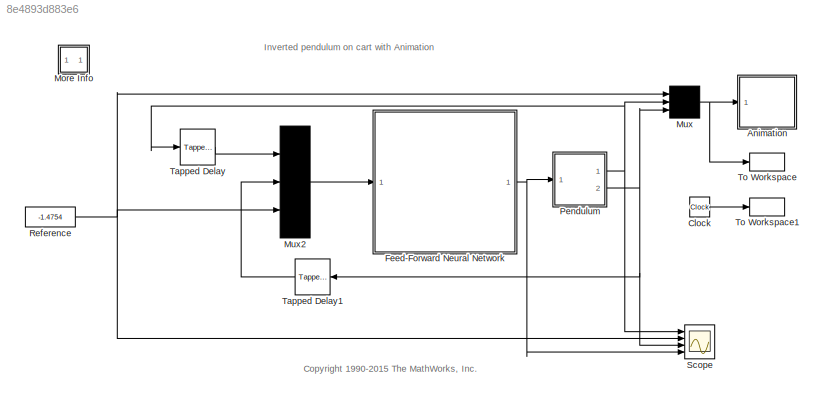
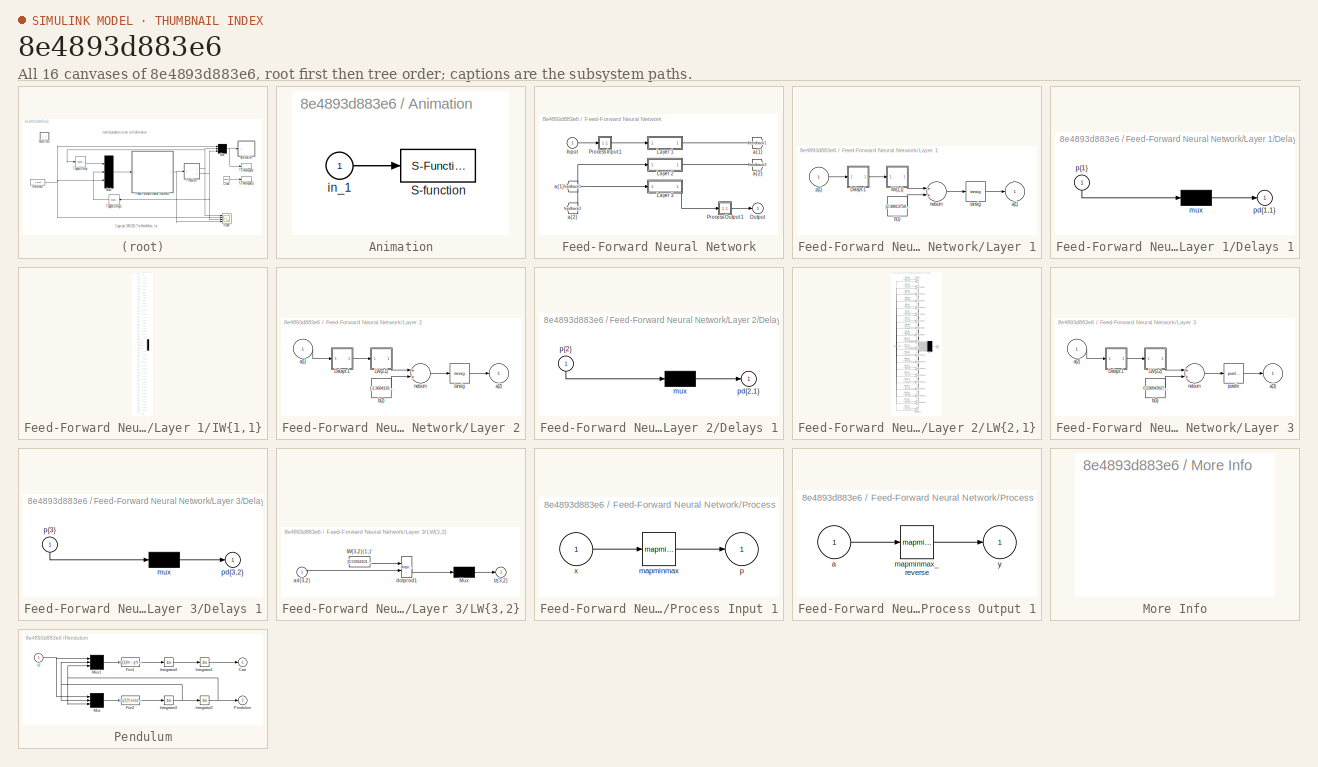
[diagram: thumbnail index - all 16 canvases of the model, root first then tree order]
MODEL slx_8e4893d883e6
KIND model
CONFIG AbsTol = 1e-6
CONFIG EnableMultiTasking = off
CONFIG FixedStep = auto
CONFIG MaxStep = 0.02
CONFIG MinStep = auto
CONFIG RelTol = 1e-3
CONFIG SampleTimeConstraint = Unconstrained
CONFIG Solver = ode45
CONFIG SolverName = ode45
CONFIG StartTime = 0
CONFIG StopTime = inf
BLOCK [SubSystem] Animation
  Ports = [1]
  RequestExecContextInheritance = off
BLOCK [S-Function] Animation/S-function
  DeleteFcn = pendan([],[],[],'DeleteBlock');
  EnableBusSupport = off
  FunctionName = pendan
  Parameters = RefBlock
  Ports = [1]
  SFcnIsStateOwnerBlock = off
  SFunctionDeploymentMode = off
BLOCK [Inport] Animation/in_1
  IconDisplay = Port number
BLOCK [Clock] Clock
BLOCK [SubSystem] Feed-Forward Neural Network
  Ports = [1, 1]
  RequestExecContextInheritance = off
BLOCK [From] Feed-Forward Neural Network/ a{1} 
  GotoTag = feedback1
BLOCK [From] Feed-Forward Neural Network/ a{2} 
  GotoTag = feedback2
BLOCK [Inport] Feed-Forward Neural Network/Input
  IconDisplay = Port number
  PortDimensions = 9
BLOCK [SubSystem] Feed-Forward Neural Network/Layer 1
  Ports = [1, 1]
  RequestExecContextInheritance = off
BLOCK [SubSystem] Feed-Forward Neural Network/Layer 1/Delays 1
  Ports = [1, 1]
  RequestExecContextInheritance = off
BLOCK [Mux] Feed-Forward Neural Network/Layer 1/Delays 1/mux
  Inputs = 1
  Ports = [1, 1]
BLOCK [Outport] Feed-Forward Neural Network/Layer 1/Delays 1/pd{1,1}
  IconDisplay = Port number
BLOCK [Inport] Feed-Forward Neural Network/Layer 1/Delays 1/p{1}
  IconDisplay = Port number
  PortDimensions = 9
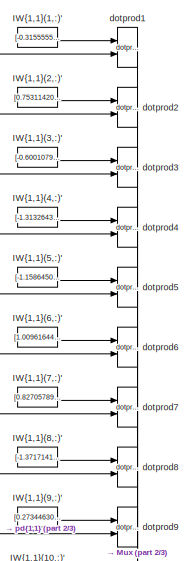
[diagram: Feed-Forward Neural Network/Layer 1/IW{1,1} - part 1/3, top center region]
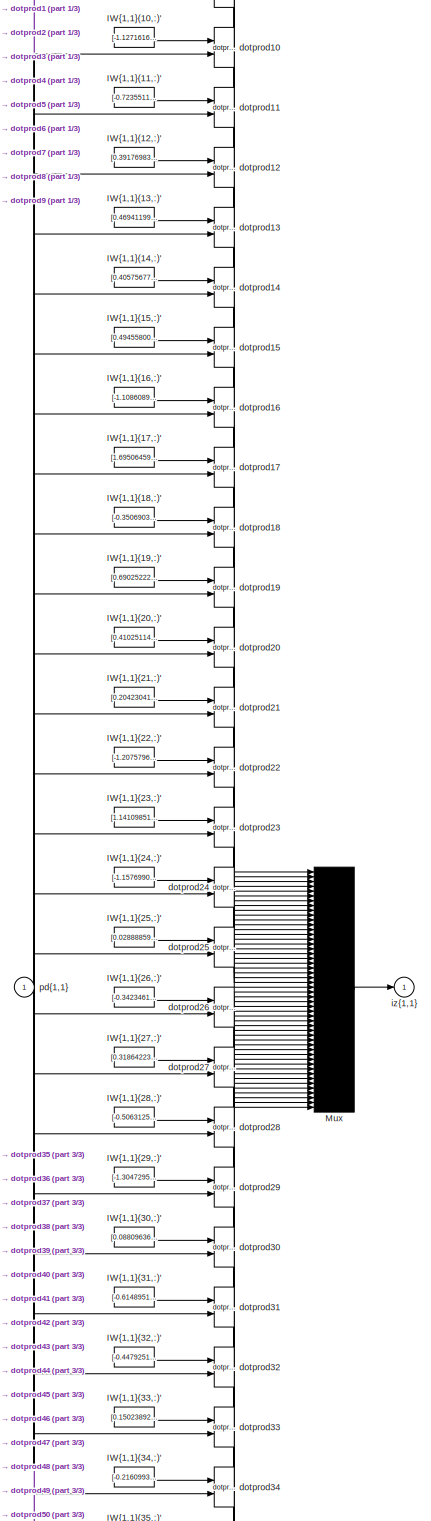
[diagram: Feed-Forward Neural Network/Layer 1/IW{1,1} - part 2/3, full width, middle band]
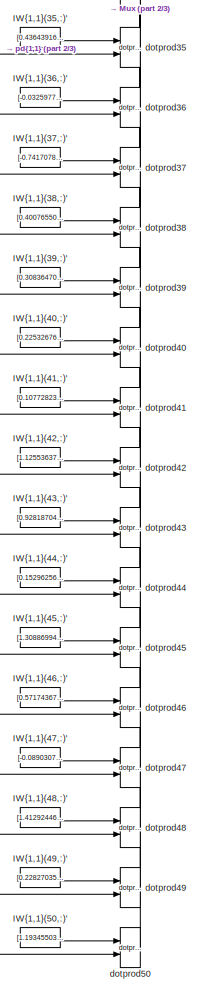
[diagram: Feed-Forward Neural Network/Layer 1/IW{1,1} - part 3/3, bottom center region]
BLOCK [SubSystem] Feed-Forward Neural Network/Layer 1/IW{1,1}
  Ports = [1, 1]
  RequestExecContextInheritance = off
BLOCK [Constant] Feed-Forward Neural Network/Layer 1/IW{1,1}/IW{1,1}(1,:)'
  Value = [-0.31555555881384067529182857470004819333553314208984375;0.42878021754571926660304370670928619801998138427734375;-0.0107473012178736886113039616930109332315623760223388671875;-1.3786333332536795381884076050482690334320068359375;0.2466842726358048076829021511002792976796627044677734375;-0.443770337362677957937506789676262997090816497802734375;0.6142590886963574803303345106542110443115234375;0.7934...<+107ch>
BLOCK [Constant] Feed-Forward Neural Network/Layer 1/IW{1,1}/IW{1,1}(10,:)'
  Value = [-1.127161642979468414438315448933281004428863525390625;-0.01531473256999515801524136549005561391822993755340576171875;0.66738346115575308825640377108356915414333343505859375;0.9754438276149068887121984516852535307407379150390625;-0.9679253878951674661124116028076969087123870849609375;0.733607171987361805776117762434296309947967529296875;0.57226531948503878144407508443691767752170562744140625;-0.9...<+104ch>
BLOCK [Constant] Feed-Forward Neural Network/Layer 1/IW{1,1}/IW{1,1}(11,:)'
  Value = [-0.7235511285626261557268890101113356649875640869140625;-1.1538311728051569016173516502021811902523040771484375;0.83219382713551415253760978885111398994922637939453125;0.8528391957357628339053690069704316556453704833984375;-1.225194887015537137386900212732143700122833251953125;-0.113464709832653609655750415186048485338687896728515625;-0.65765666929837907073164160465239547193050384521484375;-0.664...<+108ch>
BLOCK [Constant] Feed-Forward Neural Network/Layer 1/IW{1,1}/IW{1,1}(12,:)'
  Value = [0.39176983325826231219224382584798149764537811279296875;-0.30969059820905975310978419656748883426189422607421875;-0.157098741820563658766474190997541882097721099853515625;-0.734606532386577359972079648287035524845123291015625;0.2214909422180497688970035596867091953754425048828125;1.28271197347724363879706288571469485759735107421875;0.53025793193026615757190711519797332584857940673828125;0.8886386...<+99ch>
BLOCK [Constant] Feed-Forward Neural Network/Layer 1/IW{1,1}/IW{1,1}(13,:)'
  Value = [0.4694119926947788457027854747138917446136474609375;0.84304552135569787996161039700382389128208160400390625;-0.56604187158333540974552988700452260673046112060546875;0.12057132118322488878447984461672604084014892578125;1.928569665412307898577637388370931148529052734375;-0.676114380799501812902008168748579919338226318359375;0.239362492717263009023298536703805439174175262451171875;0.1000121976890203...<+97ch>
BLOCK [Constant] Feed-Forward Neural Network/Layer 1/IW{1,1}/IW{1,1}(14,:)'
  Value = [0.405756778086816483064325211671530269086360931396484375;1.4762826494711440705742688805912621319293975830078125;-0.6160052014403716302837210605503059923648834228515625;0.370993442519975957782918385419179685413837432861328125;0.5321273006076394640473381514311768114566802978515625;-0.63250490898227551550547786973766051232814788818359375;0.1763096386724627706588108821961213834583759307861328125;-0.0...<+116ch>
BLOCK [Constant] Feed-Forward Neural Network/Layer 1/IW{1,1}/IW{1,1}(15,:)'
  Value = [0.4945580005144349922119317852775566279888153076171875;-0.30371329537800229037003418852691538631916046142578125;-0.12657247648842939735658319477806799113750457763671875;-1.254771661749214839431942891678772866725921630859375;1.2513953241071182898025426766253076493740081787109375;-0.2429382434092005327297414396525709889829158782958984375;-0.9021522058858228998445838442421518266201019287109375;-0.71...<+108ch>
BLOCK [Constant] Feed-Forward Neural Network/Layer 1/IW{1,1}/IW{1,1}(16,:)'
  Value = [-1.1086089705421182660671775010996498167514801025390625;0.13153072035216284429992583682178519666194915771484375;0.188915927396714977692937509345938451588153839111328125;-0.8110236400015413682496046021697111427783966064453125;-0.383791213781895346190964346533291973173618316650390625;0.0019837883702850493683467192340685869567096233367919921875;0.68049020551012129320866961279534734785556793212890625...<+111ch>
BLOCK [Constant] Feed-Forward Neural Network/Layer 1/IW{1,1}/IW{1,1}(17,:)'
  Value = [1.695064598379282916340571318869479000568389892578125;0.37882205685793424176921462276368401944637298583984375;0.400870413159026328653311566085903905332088470458984375;-2.0781413995163919850028833025135099887847900390625;1.73490465554027384342816731077618896961212158203125;-1.444554989619908358378097545937635004520416259765625;1.521775698019746325684309340431354939937591552734375;-1.14672649058108...<+97ch>
BLOCK [Constant] Feed-Forward Neural Network/Layer 1/IW{1,1}/IW{1,1}(18,:)'
  Value = [-0.350690327718819194746657785799470730125904083251953125;-0.7298307839542406139088370764511637389659881591796875;0.080331001842342708574307152957771904766559600830078125;-0.2264533897417844443555878797269542701542377471923828125;1.2103384853547785038330175666487775743007659912109375;-0.01487761549236282614117055089764107833616435527801513671875;-1.804827730506363803186786753940396010875701904296...<+116ch>
BLOCK [Constant] Feed-Forward Neural Network/Layer 1/IW{1,1}/IW{1,1}(19,:)'
  Value = [0.69025222365466232243846889105043374001979827880859375;0.72407871395070666498128275634371675550937652587890625;-0.9153915604214015733219866888248361647129058837890625;-0.82307459957225870272878864852827973663806915283203125;-0.2295515018585499722458820315296179614961147308349609375;-0.020777463007284745211133980546946986578404903411865234375;-1.702046356416770711561525786237325519323348999023437...<+120ch>
BLOCK [Constant] Feed-Forward Neural Network/Layer 1/IW{1,1}/IW{1,1}(2,:)'
  Value = [0.75311420016744168304256845658528618514537811279296875;0.79978875953749961613681307426304556429386138916015625;0.96009154060472201575038297960418276488780975341796875;-0.300561830203671165318013436262845061719417572021484375;0.40602009911398384556235896525322459638118743896484375;1.1108934598249404768210979455034248530864715576171875;0.11083407343756877805329708053250215016305446624755859375;1.5...<+107ch>
BLOCK [Constant] Feed-Forward Neural Network/Layer 1/IW{1,1}/IW{1,1}(20,:)'
  Value = [0.41025114392726724776849778208998031914234161376953125;-0.94407653012080505749992198616382665932178497314453125;-0.47173289343233426595958235338912345468997955322265625;1.3654696510674215748082360732951201498508453369140625;-0.104760883286913741851975601093727163970470428466796875;1.648557662635401044326499686576426029205322265625;-2.283586288340160752596830207039602100849151611328125;0.78062908...<+103ch>
BLOCK [Constant] Feed-Forward Neural Network/Layer 1/IW{1,1}/IW{1,1}(21,:)'
  Value = [0.204230412979091335845538424109690822660923004150390625;0.488765287185259966751260662931599654257297515869140625;-0.95418031643023704102546389549388550221920013427734375;0.82964132894869724310638048336841166019439697265625;0.36653691493746032303846504873945377767086029052734375;1.70232992659664006396269542165100574493408203125;-0.37295451432827542159742506555630825459957122802734375;0.3838190679...<+100ch>
BLOCK [Constant] Feed-Forward Neural Network/Layer 1/IW{1,1}/IW{1,1}(22,:)'
  Value = [-1.2075796187402361159257679901202209293842315673828125;-1.4344767144320462737283605747506953775882720947265625;-0.385734577372322584576380677390261553227901458740234375;-0.368066024648789624773570494653540663421154022216796875;1.25235491089850103918479362619109451770782470703125;1.395404085665501003887811748427338898181915283203125;0.7191071159702386861312106702825985848903656005859375;0.3783536...<+104ch>
BLOCK [Constant] Feed-Forward Neural Network/Layer 1/IW{1,1}/IW{1,1}(23,:)'
  Value = [1.141098519073533879009119118563830852508544921875;-0.7222178307753706061333787147304974496364593505859375;-1.0486600899619560323117184452712535858154296875;-0.9834664350422215317593099825899116694927215576171875;0.27914584816355214602623391328961588442325592041015625;-3.002461764557355916593905931222252547740936279296875;0.79946594802184234307418364551267586648464202880859375;-0.2910640751156319...<+96ch>
BLOCK [Constant] Feed-Forward Neural Network/Layer 1/IW{1,1}/IW{1,1}(24,:)'
  Value = [-1.1576990638051898319105248447158373892307281494140625;1.28110704192706226223208432202227413654327392578125;-0.11377994960776420529935393233245122246444225311279296875;0.5335163161567619827252428876818157732486724853515625;-0.5961240722690466231625805448857136070728302001953125;0.1704295245357524135609850191031000576913356781005859375;-2.080284913829131721030307744513265788555145263671875;-0.046...<+109ch>
BLOCK [Constant] Feed-Forward Neural Network/Layer 1/IW{1,1}/IW{1,1}(25,:)'
  Value = [0.0288885994618807394329618176698204479180276393890380859375;0.25905725701129156401947284393827430903911590576171875;0.36959535968647172499146336122066713869571685791015625;-1.06341257201670291721029570908285677433013916015625;-1.1467439713673706069840818599914200603961944580078125;-0.158768234471241276306585632482892833650112152099609375;0.92199159891461934801526467708754353225231170654296875;1....<+106ch>
BLOCK [Constant] Feed-Forward Neural Network/Layer 1/IW{1,1}/IW{1,1}(26,:)'
  Value = [-0.342346180602712879537108392469235695898532867431640625;1.5059230527926448228726030720281414687633514404296875;0.832617076855945104085776620195247232913970947265625;-0.470059663377616454571494841729872860014438629150390625;0.64242973391724300658012225540005601942539215087890625;-0.436943685127800407475007204993744380772113800048828125;-1.40624049407380624643337796442210674285888671875;-1.753857...<+99ch>
BLOCK [Constant] Feed-Forward Neural Network/Layer 1/IW{1,1}/IW{1,1}(27,:)'
  Value = [0.318642231801257558299056427131290547549724578857421875;-0.675326215282094466374473995529115200042724609375;-0.39831009806688111307693134222063235938549041748046875;0.75477941483355959206846819142811000347137451171875;-0.017647998467868748762032993226966937072575092315673828125;0.44884890348861594677742914427653886377811431884765625;-1.9533747980821474232726586706121452152729034423828125;1.44557...<+106ch>
BLOCK [Constant] Feed-Forward Neural Network/Layer 1/IW{1,1}/IW{1,1}(28,:)'
  Value = [-0.506312524694261245628013057284988462924957275390625;-0.90489803148034708701885620030225254595279693603515625;0.71216410228876869670244786902912892401218414306640625;-0.1052561477421264102272147056282847188413143157958984375;0.352357063237664525079395616558031179010868072509765625;-0.378363431434841579470429451248492114245891571044921875;-1.535504428395983556043802309432066977024078369140625;-1...<+116ch>
BLOCK [Constant] Feed-Forward Neural Network/Layer 1/IW{1,1}/IW{1,1}(29,:)'
  Value = [-1.3047295679785249067350605400861240923404693603515625;0.51214131300232423882334842346608638763427734375;0.9050796768443254425307031851843930780887603759765625;0.61736751265045131109587828177609480917453765869140625;-2.173644167813520322596332334796898066997528076171875;0.65482397329186958767621717925067059695720672607421875;-0.469070913889525653583945086211315356194972991943359375;-0.2988423045...<+100ch>
BLOCK [Constant] Feed-Forward Neural Network/Layer 1/IW{1,1}/IW{1,1}(3,:)'
  Value = [-0.60010798021809275137883332718047313392162322998046875;0.918456408957665448866691804141737520694732666015625;-0.488563622390203733392155527326394803822040557861328125;-0.51898886698700408270923389864037744700908660888671875;0.031506951512699055140132031738176010549068450927734375;-0.62720612179891166437784022491541691124439239501953125;-0.167990039071726771080506068756221793591976165771484375;0...<+111ch>
BLOCK [Constant] Feed-Forward Neural Network/Layer 1/IW{1,1}/IW{1,1}(30,:)'
  Value = [0.088096360074421398156374607424368150532245635986328125;0.125417341018892625204017576834303326904773712158203125;0.80236076444299853083208518000901676714420318603515625;1.4695501105860329094099370195181109011173248291015625;0.493772762787404728701545764124603010714054107666015625;-0.86571053806297670885072648161440156400203704833984375;-0.27053993759736749691313661969616077840328216552734375;0.7...<+108ch>
BLOCK [Constant] Feed-Forward Neural Network/Layer 1/IW{1,1}/IW{1,1}(31,:)'
  Value = [-0.61489511028155963145991336205042898654937744140625;-0.454015647212658801645801531776669435203075408935546875;-0.253994370272146607891983194349450059235095977783203125;0.62032010106435520047085674377740360796451568603515625;0.57386932033504389760736330572399310767650604248046875;0.91523673794515281176842336208210326731204986572265625;-2.4057773677357925379283187794499099254608154296875;-0.00117...<+103ch>
BLOCK [Constant] Feed-Forward Neural Network/Layer 1/IW{1,1}/IW{1,1}(32,:)'
  Value = [-0.447925142480680216205968235954060219228267669677734375;1.1636542356515617857581901262165047228336334228515625;0.82724597567363911121418595939758233726024627685546875;-0.548005444646787243101471176487393677234649658203125;-0.63214604842918020732867034894297830760478973388671875;-0.362111865110982755755486550697241909801959991455078125;-0.226400127330656453228385771581088192760944366455078125;-3...<+112ch>
BLOCK [Constant] Feed-Forward Neural Network/Layer 1/IW{1,1}/IW{1,1}(33,:)'
  Value = [0.1502389200047310746644058099263929761946201324462890625;0.076394055196631172055532488229800947010517120361328125;0.314550706026246296165282956280861981213092803955078125;1.300730838509452258477949726511724293231964111328125;0.03781352420562822391758572848630137741565704345703125;-0.93135785199220399999120445500011555850505828857421875;1.539524599725752285195312651921994984149932861328125;-0.614...<+109ch>
BLOCK [Constant] Feed-Forward Neural Network/Layer 1/IW{1,1}/IW{1,1}(34,:)'
  Value = [-0.2160993187763598777362261671441956423223018646240234375;-1.016087483009903369435278364107944071292877197265625;0.193857682349798554621855828372645191848278045654296875;0.629272001659570090481565785012207925319671630859375;-0.68828050227516068826361106403055600821971893310546875;2.7608669233230234141274195280857384204864501953125;-1.6160013389992446963816519200918264687061309814453125;2.2825370...<+102ch>
BLOCK [Constant] Feed-Forward Neural Network/Layer 1/IW{1,1}/IW{1,1}(35,:)'
  Value = [0.436439167633257962819470776594243943691253662109375;-0.066369929598030619199988677792134694755077362060546875;-0.4050231747941259730083629619912244379520416259765625;0.896353825838577034090803863364271819591522216796875;-0.5539314361456373347891712910495698451995849609375;1.347896124115690152933666468015871942043304443359375;-0.102425058063205731695433087224955670535564422607421875;-0.658079793...<+102ch>
BLOCK [Constant] Feed-Forward Neural Network/Layer 1/IW{1,1}/IW{1,1}(36,:)'
  Value = [-0.032597739080619310414466127667765249498188495635986328125;0.00940020588488926951697965961329828132875263690948486328125;-1.5630841184982318115004318315186537802219390869140625;-1.0623572721555671893867156541091389954090118408203125;1.5897937578240759481928989771404303610324859619140625;1.6593572786997270451792019230197183787822723388671875;-1.058179405014753049485420888231601566076278686523437...<+116ch>
BLOCK [Constant] Feed-Forward Neural Network/Layer 1/IW{1,1}/IW{1,1}(37,:)'
  Value = [-0.7417078947075037564928834399324841797351837158203125;-1.4642032757034570966681030768086202442646026611328125;-0.441811921591786338492369168307050131261348724365234375;0.6677734635750933733788770041428506374359130859375;-0.8910019354307074923582376868580467998981475830078125;-0.95395879175244957526302869155188091099262237548828125;-2.664186918615282895217433178913779556751251220703125;1.2975226...<+103ch>
BLOCK [Constant] Feed-Forward Neural Network/Layer 1/IW{1,1}/IW{1,1}(38,:)'
  Value = [0.400765503705490189201299244814435951411724090576171875;0.50526638806091328515179839087068103253841400146484375;-1.2536405658766500703649171555298380553722381591796875;-1.07783516630355524767992392298765480518341064453125;0.65331900037182466522978074863203801214694976806640625;0.16422468634164866241320623885258100926876068115234375;1.0099526480469120937044635866186581552028656005859375;0.7291633...<+96ch>
BLOCK [Constant] Feed-Forward Neural Network/Layer 1/IW{1,1}/IW{1,1}(39,:)'
  Value = [0.30836470746044086777004622490494512021541595458984375;-0.9461172142420519737271433768910355865955352783203125;-0.61612646247528568554940875401371158659458160400390625;0.31716226887904586106969873071648180484771728515625;-0.189342552119727558501693920334219001233577728271484375;1.7621747274356227563885113340802490711212158203125;-1.7636440394071775106255017817602492868900299072265625;0.536177704...<+100ch>
BLOCK [Constant] Feed-Forward Neural Network/Layer 1/IW{1,1}/IW{1,1}(4,:)'
  Value = [-1.313264325139350763294032731209881603717803955078125;0.577430178245246228385667563998140394687652587890625;0.59261872570352291944573153159581124782562255859375;1.1565928017486708512251425418071448802947998046875;-1.5158360318740642380674898959114216268062591552734375;0.23944884577022051974637406601686961948871612548828125;-0.741730729462697357945444309734739363193511962890625;-0.497484835895401...<+95ch>
BLOCK [Constant] Feed-Forward Neural Network/Layer 1/IW{1,1}/IW{1,1}(40,:)'
  Value = [0.2253267613164235683154146272499929182231426239013671875;-0.72744873942601151473041909412131644785404205322265625;0.494167563515222230119405821824329905211925506591796875;1.1645096904818676986081982249743305146694183349609375;1.354357965548462328086998240905813872814178466796875;0.515846662339619843606897120480425655841827392578125;-2.991249228996013531656217310228385031223297119140625;-0.580798...<+104ch>
BLOCK [Constant] Feed-Forward Neural Network/Layer 1/IW{1,1}/IW{1,1}(41,:)'
  Value = [0.107728237063276555129931466581183485686779022216796875;-0.404281704316281242927999528546934016048908233642578125;1.4955745902677739511688059792504645884037017822265625;0.060690974968412504664261319931028992868959903717041015625;0.287713764701010232816003053812892176210880279541015625;0.7331962147546924324359451929922215640544891357421875;0.86318088328563080668942575357505120337009429931640625;1...<+111ch>
BLOCK [Constant] Feed-Forward Neural Network/Layer 1/IW{1,1}/IW{1,1}(42,:)'
  Value = [1.1255363747790969597417642944492399692535400390625;-0.025706183688733001690973622999081271700561046600341796875;-0.484981238223346100557620275139925070106983184814453125;-0.98625569121625122903651572414673864841461181640625;0.03753959977101918588093809603378758765757083892822265625;-1.00586934735876720736769129871390759944915771484375;0.5739751137437598682566886054701171815395355224609375;0.7752...<+105ch>
BLOCK [Constant] Feed-Forward Neural Network/Layer 1/IW{1,1}/IW{1,1}(43,:)'
  Value = [0.92818704315667588389260345138609409332275390625;0.00866950617375148065157919319290158455260097980499267578125;-0.64008262890003908562874812560039572417736053466796875;-0.8548217496565875261893552305991761386394500732421875;-0.2402185911989817290734805510510341264307498931884765625;-1.495915794684951283244345177081413567066192626953125;1.8430815049572377706255110751953907310962677001953125;-1.59...<+105ch>
BLOCK [Constant] Feed-Forward Neural Network/Layer 1/IW{1,1}/IW{1,1}(44,:)'
  Value = [0.1529625697167308062685009417691617272794246673583984375;0.97732281546550925366290130114066414535045623779296875;-0.56278454962883817103147521265782415866851806640625;-0.52553410103238740180842114568804390728473663330078125;-0.85806568612284817021418348303996026515960693359375;0.7445806319677148454871939975419081747531890869140625;-0.256530000406411329283429267889005132019519805908203125;0.80758...<+101ch>
BLOCK [Constant] Feed-Forward Neural Network/Layer 1/IW{1,1}/IW{1,1}(45,:)'
  Value = [1.3088699449507092964495313935913145542144775390625;0.64354427196952179723865583582664839923381805419921875;-0.6964658495650899450168935800320468842983245849609375;-0.208199507696994190464323537526070140302181243896484375;0.846978807405621036963339065550826489925384521484375;0.5947279136631979934435321411001496016979217529296875;1.0204117795934217749476147218956612050533294677734375;0.06004535395...<+104ch>
BLOCK [Constant] Feed-Forward Neural Network/Layer 1/IW{1,1}/IW{1,1}(46,:)'
  Value = [0.57174367558978411718584311529411934316158294677734375;-0.464679428478108003108815182713442482054233551025390625;-0.6170736426773031357839727206737734377384185791015625;-1.63257715473088627078368517686612904071807861328125;0.46912969929478653963172973817563615739345550537109375;-0.328500661122216708331933432418736629188060760498046875;-0.57585633025811555629758231589221395552158355712890625;0.18...<+108ch>
BLOCK [Constant] Feed-Forward Neural Network/Layer 1/IW{1,1}/IW{1,1}(47,:)'
  Value = [-0.089030765831632552309571337900706566870212554931640625;-0.75483625801540521482735357494675554335117340087890625;0.0394836553850045623992315313444123603403568267822265625;0.64829089224797253887544457029434852302074432373046875;-0.27305487478529599787435699909110553562641143798828125;-0.9162924501737725879735307898954488337039947509765625;-1.239579832779849954960127433878369629383087158203125;1....<+109ch>
BLOCK [Constant] Feed-Forward Neural Network/Layer 1/IW{1,1}/IW{1,1}(48,:)'
  Value = [1.4129244668716400834540536379790864884853363037109375;0.1354011458253276678487253548155422322452068328857421875;-0.51830764909016446839729042039834894239902496337890625;0.72432435951206175506200679592438973486423492431640625;-0.463203984082069364358602570064249448478221893310546875;-1.420163917436811029659793348400853574275970458984375;1.78534580440193213490829293732531368732452392578125;-0.4938...<+109ch>
BLOCK [Constant] Feed-Forward Neural Network/Layer 1/IW{1,1}/IW{1,1}(49,:)'
  Value = [0.2282703584214630099236131854922859929502010345458984375;-0.3153756464550985239014835315174423158168792724609375;-0.0967401052640957381800745906730298884212970733642578125;-0.1848623589101048569904861551549402065575122833251953125;-0.348643515079936516798397860839031636714935302734375;-1.2152883840003647630823024883284233510494232177734375;-0.21317488007125987015122348111617611721158027648925781...<+115ch>
BLOCK [Constant] Feed-Forward Neural Network/Layer 1/IW{1,1}/IW{1,1}(5,:)'
  Value = [-1.1586450961340972742874555478920228779315948486328125;0.86603543464462429124495201904210262000560760498046875;-0.98898542847015102896790494924061931669712066650390625;-0.71856379014599747190317202694131992757320404052734375;-0.957587367793592658671286699245683848857879638671875;-0.27196898103878097696650684156338684260845184326171875;0.54967310437313143811621785062015987932682037353515625;0.456...<+108ch>
BLOCK [Constant] Feed-Forward Neural Network/Layer 1/IW{1,1}/IW{1,1}(50,:)'
  Value = [1.193455035090516869189514181925915181636810302734375;-0.07137178442131568434358968033848213963210582733154296875;-0.343478174381469492093543749433592893183231353759765625;-0.6739219251907597740824940046877600252628326416015625;0.32778546147606657523709827728453092277050018310546875;-1.07881066144221282598891775705851614475250244140625;0.91057454245496283196104059243225492537021636962890625;-1.56...<+105ch>
BLOCK [Constant] Feed-Forward Neural Network/Layer 1/IW{1,1}/IW{1,1}(6,:)'
  Value = [1.0096164402001150950383134841104038059711456298828125;-0.5087921797833383497078330037766136229038238525390625;-0.282530570280445536557323293891386128962039947509765625;0.72584013128025526295772351659252308309078216552734375;-1.6716593354462292442264015335240401327610015869140625;0.372859509415361001227751103215268813073635101318359375;-1.11998938506951351001816874486394226551055908203125;-0.9780...<+103ch>
BLOCK [Constant] Feed-Forward Neural Network/Layer 1/IW{1,1}/IW{1,1}(7,:)'
  Value = [0.82705789984217659149834389609168283641338348388671875;-0.91517933332349510333614261980983428657054901123046875;-1.1887679105232697995830903892056085169315338134765625;0.325102448305115976356916007716790772974491119384765625;-1.694022640331411810876716117491014301776885986328125;-1.7891524794039970203129996662028133869171142578125;1.4183468714626688012003796757198870182037353515625;-0.4288835611...<+104ch>
BLOCK [Constant] Feed-Forward Neural Network/Layer 1/IW{1,1}/IW{1,1}(8,:)'
  Value = [-1.3717141751145340844431075311149470508098602294921875;-0.16600636872701624024983857452752999961376190185546875;-0.0175566148612653870342281692273900262080132961273193359375;-0.39982736491193182626346924735116772353649139404296875;-0.3126907004793497701911064723390154540538787841796875;0.90728952553643704703745243023149669170379638671875;-0.93880271077071519858492365528945811092853546142578125;0...<+108ch>
BLOCK [Constant] Feed-Forward Neural Network/Layer 1/IW{1,1}/IW{1,1}(9,:)'
  Value = [0.2734463028534468431729465009993873536586761474609375;-0.80819905082407961227630721623427234590053558349609375;-0.42058233299171454699916239405865781009197235107421875;0.10067193516282983700715902841693605296313762664794921875;0.376730661079810180691396226393408142030239105224609375;0.76916785552568944783757842742488719522953033447265625;1.4174229167593725975393681437708437442779541015625;-1.448...<+106ch>
BLOCK [Mux] Feed-Forward Neural Network/Layer 1/IW{1,1}/Mux
  Inputs = 50
  Ports = [50, 1]
BLOCK [Reference] Feed-Forward Neural Network/Layer 1/IW{1,1}/dotprod1  REF=neural/Weight Functions/dotprod
  Ports = [2, 1]
  SourceBlock = neural/Weight Functions/dotprod
  SourceProductBaseCode = NN
  SourceProductName = Deep Learning Toolbox
  SourceType = DOTPROD
BLOCK [Reference] Feed-Forward Neural Network/Layer 1/IW{1,1}/dotprod10  REF=neural/Weight Functions/dotprod
  Ports = [2, 1]
  SourceBlock = neural/Weight Functions/dotprod
  SourceProductBaseCode = NN
  SourceProductName = Deep Learning Toolbox
  SourceType = DOTPROD
BLOCK [Reference] Feed-Forward Neural Network/Layer 1/IW{1,1}/dotprod11  REF=neural/Weight Functions/dotprod
  Ports = [2, 1]
  SourceBlock = neural/Weight Functions/dotprod
  SourceProductBaseCode = NN
  SourceProductName = Deep Learning Toolbox
  SourceType = DOTPROD
BLOCK [Reference] Feed-Forward Neural Network/Layer 1/IW{1,1}/dotprod12  REF=neural/Weight Functions/dotprod
  Ports = [2, 1]
  SourceBlock = neural/Weight Functions/dotprod
  SourceProductBaseCode = NN
  SourceProductName = Deep Learning Toolbox
  SourceType = DOTPROD
BLOCK [Reference] Feed-Forward Neural Network/Layer 1/IW{1,1}/dotprod13  REF=neural/Weight Functions/dotprod
  Ports = [2, 1]
  SourceBlock = neural/Weight Functions/dotprod
  SourceProductBaseCode = NN
  SourceProductName = Deep Learning Toolbox
  SourceType = DOTPROD
BLOCK [Reference] Feed-Forward Neural Network/Layer 1/IW{1,1}/dotprod14  REF=neural/Weight Functions/dotprod
  Ports = [2, 1]
  SourceBlock = neural/Weight Functions/dotprod
  SourceProductBaseCode = NN
  SourceProductName = Deep Learning Toolbox
  SourceType = DOTPROD
BLOCK [Reference] Feed-Forward Neural Network/Layer 1/IW{1,1}/dotprod15  REF=neural/Weight Functions/dotprod
  Ports = [2, 1]
  SourceBlock = neural/Weight Functions/dotprod
  SourceProductBaseCode = NN
  SourceProductName = Deep Learning Toolbox
  SourceType = DOTPROD
BLOCK [Reference] Feed-Forward Neural Network/Layer 1/IW{1,1}/dotprod16  REF=neural/Weight Functions/dotprod
  Ports = [2, 1]
  SourceBlock = neural/Weight Functions/dotprod
  SourceProductBaseCode = NN
  SourceProductName = Deep Learning Toolbox
  SourceType = DOTPROD
BLOCK [Reference] Feed-Forward Neural Network/Layer 1/IW{1,1}/dotprod17  REF=neural/Weight Functions/dotprod
  Ports = [2, 1]
  SourceBlock = neural/Weight Functions/dotprod
  SourceProductBaseCode = NN
  SourceProductName = Deep Learning Toolbox
  SourceType = DOTPROD
BLOCK [Reference] Feed-Forward Neural Network/Layer 1/IW{1,1}/dotprod18  REF=neural/Weight Functions/dotprod
  Ports = [2, 1]
  SourceBlock = neural/Weight Functions/dotprod
  SourceProductBaseCode = NN
  SourceProductName = Deep Learning Toolbox
  SourceType = DOTPROD
BLOCK [Reference] Feed-Forward Neural Network/Layer 1/IW{1,1}/dotprod19  REF=neural/Weight Functions/dotprod
  Ports = [2, 1]
  SourceBlock = neural/Weight Functions/dotprod
  SourceProductBaseCode = NN
  SourceProductName = Deep Learning Toolbox
  SourceType = DOTPROD
BLOCK [Reference] Feed-Forward Neural Network/Layer 1/IW{1,1}/dotprod2  REF=neural/Weight Functions/dotprod
  Ports = [2, 1]
  SourceBlock = neural/Weight Functions/dotprod
  SourceProductBaseCode = NN
  SourceProductName = Deep Learning Toolbox
  SourceType = DOTPROD
BLOCK [Reference] Feed-Forward Neural Network/Layer 1/IW{1,1}/dotprod20  REF=neural/Weight Functions/dotprod
  Ports = [2, 1]
  SourceBlock = neural/Weight Functions/dotprod
  SourceProductBaseCode = NN
  SourceProductName = Deep Learning Toolbox
  SourceType = DOTPROD
BLOCK [Reference] Feed-Forward Neural Network/Layer 1/IW{1,1}/dotprod21  REF=neural/Weight Functions/dotprod
  Ports = [2, 1]
  SourceBlock = neural/Weight Functions/dotprod
  SourceProductBaseCode = NN
  SourceProductName = Deep Learning Toolbox
  SourceType = DOTPROD
BLOCK [Reference] Feed-Forward Neural Network/Layer 1/IW{1,1}/dotprod22  REF=neural/Weight Functions/dotprod
  Ports = [2, 1]
  SourceBlock = neural/Weight Functions/dotprod
  SourceProductBaseCode = NN
  SourceProductName = Deep Learning Toolbox
  SourceType = DOTPROD
BLOCK [Reference] Feed-Forward Neural Network/Layer 1/IW{1,1}/dotprod23  REF=neural/Weight Functions/dotprod
  Ports = [2, 1]
  SourceBlock = neural/Weight Functions/dotprod
  SourceProductBaseCode = NN
  SourceProductName = Deep Learning Toolbox
  SourceType = DOTPROD
BLOCK [Reference] Feed-Forward Neural Network/Layer 1/IW{1,1}/dotprod24  REF=neural/Weight Functions/dotprod
  Ports = [2, 1]
  SourceBlock = neural/Weight Functions/dotprod
  SourceProductBaseCode = NN
  SourceProductName = Deep Learning Toolbox
  SourceType = DOTPROD
BLOCK [Reference] Feed-Forward Neural Network/Layer 1/IW{1,1}/dotprod25  REF=neural/Weight Functions/dotprod
  Ports = [2, 1]
  SourceBlock = neural/Weight Functions/dotprod
  SourceProductBaseCode = NN
  SourceProductName = Deep Learning Toolbox
  SourceType = DOTPROD
BLOCK [Reference] Feed-Forward Neural Network/Layer 1/IW{1,1}/dotprod26  REF=neural/Weight Functions/dotprod
  Ports = [2, 1]
  SourceBlock = neural/Weight Functions/dotprod
  SourceProductBaseCode = NN
  SourceProductName = Deep Learning Toolbox
  SourceType = DOTPROD
BLOCK [Reference] Feed-Forward Neural Network/Layer 1/IW{1,1}/dotprod27  REF=neural/Weight Functions/dotprod
  Ports = [2, 1]
  SourceBlock = neural/Weight Functions/dotprod
  SourceProductBaseCode = NN
  SourceProductName = Deep Learning Toolbox
  SourceType = DOTPROD
BLOCK [Reference] Feed-Forward Neural Network/Layer 1/IW{1,1}/dotprod28  REF=neural/Weight Functions/dotprod
  Ports = [2, 1]
  SourceBlock = neural/Weight Functions/dotprod
  SourceProductBaseCode = NN
  SourceProductName = Deep Learning Toolbox
  SourceType = DOTPROD
BLOCK [Reference] Feed-Forward Neural Network/Layer 1/IW{1,1}/dotprod29  REF=neural/Weight Functions/dotprod
  Ports = [2, 1]
  SourceBlock = neural/Weight Functions/dotprod
  SourceProductBaseCode = NN
  SourceProductName = Deep Learning Toolbox
  SourceType = DOTPROD
BLOCK [Reference] Feed-Forward Neural Network/Layer 1/IW{1,1}/dotprod3  REF=neural/Weight Functions/dotprod
  Ports = [2, 1]
  SourceBlock = neural/Weight Functions/dotprod
  SourceProductBaseCode = NN
  SourceProductName = Deep Learning Toolbox
  SourceType = DOTPROD
BLOCK [Reference] Feed-Forward Neural Network/Layer 1/IW{1,1}/dotprod30  REF=neural/Weight Functions/dotprod
  Ports = [2, 1]
  SourceBlock = neural/Weight Functions/dotprod
  SourceProductBaseCode = NN
  SourceProductName = Deep Learning Toolbox
  SourceType = DOTPROD
BLOCK [Reference] Feed-Forward Neural Network/Layer 1/IW{1,1}/dotprod31  REF=neural/Weight Functions/dotprod
  Ports = [2, 1]
  SourceBlock = neural/Weight Functions/dotprod
  SourceProductBaseCode = NN
  SourceProductName = Deep Learning Toolbox
  SourceType = DOTPROD
BLOCK [Reference] Feed-Forward Neural Network/Layer 1/IW{1,1}/dotprod32  REF=neural/Weight Functions/dotprod
  Ports = [2, 1]
  SourceBlock = neural/Weight Functions/dotprod
  SourceProductBaseCode = NN
  SourceProductName = Deep Learning Toolbox
  SourceType = DOTPROD
BLOCK [Reference] Feed-Forward Neural Network/Layer 1/IW{1,1}/dotprod33  REF=neural/Weight Functions/dotprod
  Ports = [2, 1]
  SourceBlock = neural/Weight Functions/dotprod
  SourceProductBaseCode = NN
  SourceProductName = Deep Learning Toolbox
  SourceType = DOTPROD
BLOCK [Reference] Feed-Forward Neural Network/Layer 1/IW{1,1}/dotprod34  REF=neural/Weight Functions/dotprod
  Ports = [2, 1]
  SourceBlock = neural/Weight Functions/dotprod
  SourceProductBaseCode = NN
  SourceProductName = Deep Learning Toolbox
  SourceType = DOTPROD
BLOCK [Reference] Feed-Forward Neural Network/Layer 1/IW{1,1}/dotprod35  REF=neural/Weight Functions/dotprod
  Ports = [2, 1]
  SourceBlock = neural/Weight Functions/dotprod
  SourceProductBaseCode = NN
  SourceProductName = Deep Learning Toolbox
  SourceType = DOTPROD
BLOCK [Reference] Feed-Forward Neural Network/Layer 1/IW{1,1}/dotprod36  REF=neural/Weight Functions/dotprod
  Ports = [2, 1]
  SourceBlock = neural/Weight Functions/dotprod
  SourceProductBaseCode = NN
  SourceProductName = Deep Learning Toolbox
  SourceType = DOTPROD
BLOCK [Reference] Feed-Forward Neural Network/Layer 1/IW{1,1}/dotprod37  REF=neural/Weight Functions/dotprod
  Ports = [2, 1]
  SourceBlock = neural/Weight Functions/dotprod
  SourceProductBaseCode = NN
  SourceProductName = Deep Learning Toolbox
  SourceType = DOTPROD
BLOCK [Reference] Feed-Forward Neural Network/Layer 1/IW{1,1}/dotprod38  REF=neural/Weight Functions/dotprod
  Ports = [2, 1]
  SourceBlock = neural/Weight Functions/dotprod
  SourceProductBaseCode = NN
  SourceProductName = Deep Learning Toolbox
  SourceType = DOTPROD
BLOCK [Reference] Feed-Forward Neural Network/Layer 1/IW{1,1}/dotprod39  REF=neural/Weight Functions/dotprod
  Ports = [2, 1]
  SourceBlock = neural/Weight Functions/dotprod
  SourceProductBaseCode = NN
  SourceProductName = Deep Learning Toolbox
  SourceType = DOTPROD
BLOCK [Reference] Feed-Forward Neural Network/Layer 1/IW{1,1}/dotprod4  REF=neural/Weight Functions/dotprod
  Ports = [2, 1]
  SourceBlock = neural/Weight Functions/dotprod
  SourceProductBaseCode = NN
  SourceProductName = Deep Learning Toolbox
  SourceType = DOTPROD
BLOCK [Reference] Feed-Forward Neural Network/Layer 1/IW{1,1}/dotprod40  REF=neural/Weight Functions/dotprod
  Ports = [2, 1]
  SourceBlock = neural/Weight Functions/dotprod
  SourceProductBaseCode = NN
  SourceProductName = Deep Learning Toolbox
  SourceType = DOTPROD
BLOCK [Reference] Feed-Forward Neural Network/Layer 1/IW{1,1}/dotprod41  REF=neural/Weight Functions/dotprod
  Ports = [2, 1]
  SourceBlock = neural/Weight Functions/dotprod
  SourceProductBaseCode = NN
  SourceProductName = Deep Learning Toolbox
  SourceType = DOTPROD
BLOCK [Reference] Feed-Forward Neural Network/Layer 1/IW{1,1}/dotprod42  REF=neural/Weight Functions/dotprod
  Ports = [2, 1]
  SourceBlock = neural/Weight Functions/dotprod
  SourceProductBaseCode = NN
  SourceProductName = Deep Learning Toolbox
  SourceType = DOTPROD
BLOCK [Reference] Feed-Forward Neural Network/Layer 1/IW{1,1}/dotprod43  REF=neural/Weight Functions/dotprod
  Ports = [2, 1]
  SourceBlock = neural/Weight Functions/dotprod
  SourceProductBaseCode = NN
  SourceProductName = Deep Learning Toolbox
  SourceType = DOTPROD
BLOCK [Reference] Feed-Forward Neural Network/Layer 1/IW{1,1}/dotprod44  REF=neural/Weight Functions/dotprod
  Ports = [2, 1]
  SourceBlock = neural/Weight Functions/dotprod
  SourceProductBaseCode = NN
  SourceProductName = Deep Learning Toolbox
  SourceType = DOTPROD
BLOCK [Reference] Feed-Forward Neural Network/Layer 1/IW{1,1}/dotprod45  REF=neural/Weight Functions/dotprod
  Ports = [2, 1]
  SourceBlock = neural/Weight Functions/dotprod
  SourceProductBaseCode = NN
  SourceProductName = Deep Learning Toolbox
  SourceType = DOTPROD
BLOCK [Reference] Feed-Forward Neural Network/Layer 1/IW{1,1}/dotprod46  REF=neural/Weight Functions/dotprod
  Ports = [2, 1]
  SourceBlock = neural/Weight Functions/dotprod
  SourceProductBaseCode = NN
  SourceProductName = Deep Learning Toolbox
  SourceType = DOTPROD
BLOCK [Reference] Feed-Forward Neural Network/Layer 1/IW{1,1}/dotprod47  REF=neural/Weight Functions/dotprod
  Ports = [2, 1]
  SourceBlock = neural/Weight Functions/dotprod
  SourceProductBaseCode = NN
  SourceProductName = Deep Learning Toolbox
  SourceType = DOTPROD
BLOCK [Reference] Feed-Forward Neural Network/Layer 1/IW{1,1}/dotprod48  REF=neural/Weight Functions/dotprod
  Ports = [2, 1]
  SourceBlock = neural/Weight Functions/dotprod
  SourceProductBaseCode = NN
  SourceProductName = Deep Learning Toolbox
  SourceType = DOTPROD
BLOCK [Reference] Feed-Forward Neural Network/Layer 1/IW{1,1}/dotprod49  REF=neural/Weight Functions/dotprod
  Ports = [2, 1]
  SourceBlock = neural/Weight Functions/dotprod
  SourceProductBaseCode = NN
  SourceProductName = Deep Learning Toolbox
  SourceType = DOTPROD
BLOCK [Reference] Feed-Forward Neural Network/Layer 1/IW{1,1}/dotprod5  REF=neural/Weight Functions/dotprod
  Ports = [2, 1]
  SourceBlock = neural/Weight Functions/dotprod
  SourceProductBaseCode = NN
  SourceProductName = Deep Learning Toolbox
  SourceType = DOTPROD
BLOCK [Reference] Feed-Forward Neural Network/Layer 1/IW{1,1}/dotprod50  REF=neural/Weight Functions/dotprod
  Ports = [2, 1]
  SourceBlock = neural/Weight Functions/dotprod
  SourceProductBaseCode = NN
  SourceProductName = Deep Learning Toolbox
  SourceType = DOTPROD
BLOCK [Reference] Feed-Forward Neural Network/Layer 1/IW{1,1}/dotprod6  REF=neural/Weight Functions/dotprod
  Ports = [2, 1]
  SourceBlock = neural/Weight Functions/dotprod
  SourceProductBaseCode = NN
  SourceProductName = Deep Learning Toolbox
  SourceType = DOTPROD
BLOCK [Reference] Feed-Forward Neural Network/Layer 1/IW{1,1}/dotprod7  REF=neural/Weight Functions/dotprod
  Ports = [2, 1]
  SourceBlock = neural/Weight Functions/dotprod
  SourceProductBaseCode = NN
  SourceProductName = Deep Learning Toolbox
  SourceType = DOTPROD
BLOCK [Reference] Feed-Forward Neural Network/Layer 1/IW{1,1}/dotprod8  REF=neural/Weight Functions/dotprod
  Ports = [2, 1]
  SourceBlock = neural/Weight Functions/dotprod
  SourceProductBaseCode = NN
  SourceProductName = Deep Learning Toolbox
  SourceType = DOTPROD
BLOCK [Reference] Feed-Forward Neural Network/Layer 1/IW{1,1}/dotprod9  REF=neural/Weight Functions/dotprod
  Ports = [2, 1]
  SourceBlock = neural/Weight Functions/dotprod
  SourceProductBaseCode = NN
  SourceProductName = Deep Learning Toolbox
  SourceType = DOTPROD
BLOCK [Outport] Feed-Forward Neural Network/Layer 1/IW{1,1}/iz{1,1}
  IconDisplay = Port number
BLOCK [Inport] Feed-Forward Neural Network/Layer 1/IW{1,1}/pd{1,1}
  IconDisplay = Port number
  PortDimensions = 9
BLOCK [Outport] Feed-Forward Neural Network/Layer 1/a{1}
  IconDisplay = Port number
  InitialOutput = [0;0;0;0;0;0;0;0;0;0;0;0;0;0;0;0;0;0;0;0;0;0;0;0;0;0;0;0;0;0;0;0;0;0;0;0;0;0;0;0;0;0;0;0;0;0;0;0;0;0]
BLOCK [Constant] Feed-Forward Neural Network/Layer 1/b{1}
  Value = [2.388137582617482213009907354717142879962921142578125;-1.191108003539488979782845490262843668460845947265625;2.607063575903330931993195918039418756961822509765625;1.0312101241999946932281773115391843020915985107421875;2.33968502531165878366437027580104768276214599609375;-1.394726963552741505480980777065269649028778076171875;-0.722548554937401998898849342367611825466156005859375;1.5362891519741292...<+2348ch>
BLOCK [Sum] Feed-Forward Neural Network/Layer 1/netsum
  Inputs = 2
  Ports = [2, 1]
BLOCK [Inport] Feed-Forward Neural Network/Layer 1/p{1}
  IconDisplay = Port number
  PortDimensions = 9
BLOCK [Reference] Feed-Forward Neural Network/Layer 1/tansig  REF=neural/Transfer Functions/tansig
  Ports = [1, 1]
  SourceBlock = neural/Transfer Functions/tansig
  SourceProductBaseCode = NN
  SourceProductName = Deep Learning Toolbox
  SourceType = TANSIG
BLOCK [SubSystem] Feed-Forward Neural Network/Layer 2
  Ports = [1, 1]
  RequestExecContextInheritance = off
BLOCK [SubSystem] Feed-Forward Neural Network/Layer 2/Delays 1
  Ports = [1, 1]
  RequestExecContextInheritance = off
BLOCK [Mux] Feed-Forward Neural Network/Layer 2/Delays 1/mux
  Inputs = 1
  Ports = [1, 1]
BLOCK [Outport] Feed-Forward Neural Network/Layer 2/Delays 1/pd{2,1}
  IconDisplay = Port number
BLOCK [Inport] Feed-Forward Neural Network/Layer 2/Delays 1/p{2}
  IconDisplay = Port number
  PortDimensions = 50
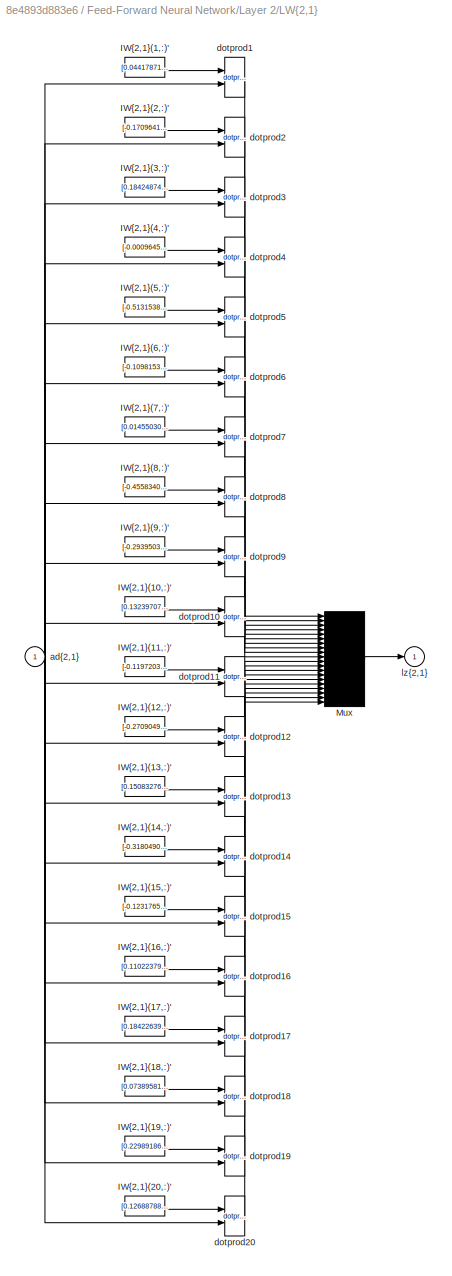
BLOCK [SubSystem] Feed-Forward Neural Network/Layer 2/LW{2,1}
  Ports = [1, 1]
  RequestExecContextInheritance = off
BLOCK [Constant] Feed-Forward Neural Network/Layer 2/LW{2,1}/IW{2,1}(1,:)'
  Value = [0.0441787180168291271353808724597911350429058074951171875;0.701247743884350516196946045965887606143951416015625;0.4460402227744963976618919332395307719707489013671875;0.60885761689121753459374986050534062087535858154296875;0.5059877841773186002427564744721166789531707763671875;0.7905831112303414176523119749617762863636016845703125;-0.260211870182399718220978002136689610779285430908203125;0.368268...<+2412ch>
BLOCK [Constant] Feed-Forward Neural Network/Layer 2/LW{2,1}/IW{2,1}(10,:)'
  Value = [0.132397077197913215496072325549903325736522674560546875;0.0834753310890813116085240608299500308930873870849609375;-0.171376374133754560968867508563562296330928802490234375;-0.43980346458511065943497442276566289365291595458984375;0.05798770692359452028075139651264180429279804229736328125;0.57957466509358368522697446678648702800273895263671875;0.6842896093003909552265895399614237248897552490234375...<+2457ch>
BLOCK [Constant] Feed-Forward Neural Network/Layer 2/LW{2,1}/IW{2,1}(11,:)'
  Value = [-0.11972033851988428398982478029211051762104034423828125;0.377836979536654238298609698176733218133449554443359375;-0.217832426207988205657528624215046875178813934326171875;-0.1382267007958139781731432549349847249686717987060546875;-0.6620097099970767562382434334722347557544708251953125;0.5578490719755671012336506464635021984577178955078125;-0.2814235421953394933325398596934974193572998046875;0.17...<+2459ch>
BLOCK [Constant] Feed-Forward Neural Network/Layer 2/LW{2,1}/IW{2,1}(12,:)'
  Value = [-0.270904977059420237761599992154515348374843597412109375;1.1165900604681147090246895459131337702274322509765625;0.39807664906084239131445201564929448068141937255859375;0.8785740733340234864812146042822860181331634521484375;-0.643056013176043439472095997189171612262725830078125;-0.049361503922549836154143321209630812518298625946044921875;-0.63698805283544113198246350293629802763462066650390625;0....<+2398ch>
BLOCK [Constant] Feed-Forward Neural Network/Layer 2/LW{2,1}/IW{2,1}(13,:)'
  Value = [0.1508327682265770131042614821126335300505161285400390625;-0.207320594086412512968564669790794141590595245361328125;0.37056203956321509540572378682554699480533599853515625;-0.36219891433729156648979596866411156952381134033203125;0.217588526993351238925100687993108294904232025146484375;-0.408323836846059828875610264731221832334995269775390625;-0.6827846973374345207474789276602678000926971435546875...<+2432ch>
BLOCK [Constant] Feed-Forward Neural Network/Layer 2/LW{2,1}/IW{2,1}(14,:)'
  Value = [-0.31804906368048324605268817322212271392345428466796875;-0.276350342878220078812745441609877161681652069091796875;-0.2426512323162688666844388762910966761410236358642578125;0.83119589997409715209641944966278970241546630859375;0.086382536290737166329023466460057534277439117431640625;0.6570935524963472662562935511232353746891021728515625;-0.56292902429403623987269611461670137941837310791015625;-0....<+2404ch>
BLOCK [Constant] Feed-Forward Neural Network/Layer 2/LW{2,1}/IW{2,1}(15,:)'
  Value = [-0.123176511806862787334893027946236543357372283935546875;0.103202738115356851267279125750064849853515625;-0.37127634485048177648280898210941813886165618896484375;0.60697710315290309690539061193703673779964447021484375;0.6423664958669619284847840390284545719623565673828125;0.05166797409482874747777003676674212329089641571044921875;0.242894687865361336154279570109792985022068023681640625;0.1059939...<+2412ch>
BLOCK [Constant] Feed-Forward Neural Network/Layer 2/LW{2,1}/IW{2,1}(16,:)'
  Value = [0.1102237938980532849786442284312215633690357208251953125;0.47257356312958009869618081211228854954242706298828125;0.0013926148141818711460870883200868775020353496074676513671875;-0.11084837515543873032175525850107078440487384796142578125;-0.379721239001031218851522908153128810226917266845703125;0.4745810698810528638347250307560898363590240478515625;-0.150421211125227494154188434549723751842975616...<+2412ch>
BLOCK [Constant] Feed-Forward Neural Network/Layer 2/LW{2,1}/IW{2,1}(17,:)'
  Value = [0.1842263943334644105132014146875008009374141693115234375;-0.51607800550903204506170141030452214181423187255859375;0.36766241787008835384398253154358826577663421630859375;-0.012415082673404707891418041754150181077420711517333984375;0.3151734580921938810860183366457931697368621826171875;-0.09698869192990400289744457040796987712383270263671875;-0.3525828974840371499155367018829565495252609252929687...<+2478ch>
BLOCK [Constant] Feed-Forward Neural Network/Layer 2/LW{2,1}/IW{2,1}(18,:)'
  Value = [0.0738958111736616463094406981326756067574024200439453125;-0.104674985993976232823143845962476916611194610595703125;-0.01108343623074070811995728291776686091907322406768798828125;0.172604015687736034312393940126639790832996368408203125;0.303965105294416504388976818518131040036678314208984375;-0.2175775871686956020045755622049910016357898712158203125;-0.00964988628669870285303744594784802757203578...<+2519ch>
BLOCK [Constant] Feed-Forward Neural Network/Layer 2/LW{2,1}/IW{2,1}(19,:)'
  Value = [0.229891864586793392977170924496022053062915802001953125;-0.305227809054460730298075077371322549879550933837890625;0.02181546405958091627841355375494458712637424468994140625;0.036524792890740655215697785251904861070215702056884765625;0.1561082138419200848744594622985459864139556884765625;0.007154251664900947160763422516538412310183048248291015625;-0.22871959162533128662175840872805565595626831054...<+2481ch>
BLOCK [Constant] Feed-Forward Neural Network/Layer 2/LW{2,1}/IW{2,1}(2,:)'
  Value = [-0.170964107187074165761231370197492651641368865966796875;0.421124299034444649070252353340038098394870758056640625;0.39938122334671166679953557832050137221813201904296875;1.08160729740899785866758975316770374774932861328125;0.0886610146877013505228859457929502241313457489013671875;-0.065409439426143356488552171867922879755496978759765625;-0.76498649347654368302329430662211962044239044189453125;-0...<+2424ch>
BLOCK [Constant] Feed-Forward Neural Network/Layer 2/LW{2,1}/IW{2,1}(20,:)'
  Value = [0.1268878841851018568487319271298474632203578948974609375;-0.97089476421372877812387969242990948259830474853515625;0.268570659424311075635927181792794726788997650146484375;-0.8185695493934728173002213225117884576320648193359375;0.1974634877611049776913176856396603398025035858154296875;-0.635079243871558229983520504902116954326629638671875;-0.69542853729020148723094507658970542252063751220703125;0...<+2453ch>
BLOCK [Constant] Feed-Forward Neural Network/Layer 2/LW{2,1}/IW{2,1}(3,:)'
  Value = [0.1842487485045357364921159160076058469712734222412109375;-0.75827584245371271176594518692581914365291595458984375;0.25279071432256638995994535434874705970287322998046875;-0.09147597486968729596501503920080722309648990631103515625;0.29403220757969494858485859367647208273410797119140625;-0.201088900784166357826876492254086770117282867431640625;-0.087539935398794746501671681926382007077336311340332...<+2476ch>
BLOCK [Constant] Feed-Forward Neural Network/Layer 2/LW{2,1}/IW{2,1}(4,:)'
  Value = [-0.00096450983060747418930402918846311877132393419742584228515625;-0.392184324652819327194919196699629537761211395263671875;0.284832765660933961981982065481133759021759033203125;-0.0901427702282862342020308688006480224430561065673828125;0.2380729607832761107744090622873045504093170166015625;-0.346720918071017403239153509275638498365879058837890625;0.12986115389126037800160418100858805701136589050...<+2475ch>
BLOCK [Constant] Feed-Forward Neural Network/Layer 2/LW{2,1}/IW{2,1}(5,:)'
  Value = [-0.51315383582977924792345447713159956037998199462890625;0.252484554887449641480401396620436571538448333740234375;-0.1508996420170085617229460694943554699420928955078125;0.5588980957282452255441285160486586391925811767578125;0.2164451513465966703275711324749863706529140472412109375;0.316611760125513452823753368647885508835315704345703125;-0.2795250643454518790775864545139484107494354248046875;0.5...<+2432ch>
BLOCK [Constant] Feed-Forward Neural Network/Layer 2/LW{2,1}/IW{2,1}(6,:)'
  Value = [-0.10981534438134542275289362578405416570603847503662109375;0.09423444619112142373040796883287839591503143310546875;-0.06875186006196891408404070489268633536994457244873046875;-0.466287937418916553777847866513184271752834320068359375;-0.048347385106453366621082068377290852367877960205078125;-0.01539263844207655086704367164429640979506075382232666015625;0.490792734195550750531111816599150188267230...<+2453ch>
BLOCK [Constant] Feed-Forward Neural Network/Layer 2/LW{2,1}/IW{2,1}(7,:)'
  Value = [0.01455030022861045387039258258710106019861996173858642578125;0.126484458830640578153037267838953994214534759521484375;0.42862901866664204764134638026007451117038726806640625;-0.490978378327011466542018069958430714905261993408203125;0.20981235802867070905364244026714004576206207275390625;-0.2356588058655380013561853047576732933521270751953125;-1.20747542478848135516500406083650887012481689453125;...<+2418ch>
BLOCK [Constant] Feed-Forward Neural Network/Layer 2/LW{2,1}/IW{2,1}(8,:)'
  Value = [-0.455834013181223351995896564403665252029895782470703125;1.041365761766467556981297093443572521209716796875;-0.2004604942274526013790136858006007969379425048828125;-0.57175360782329065489903996422071941196918487548828125;-1.0564934840946076377576900995336472988128662109375;1.009679082522141779776347902952693402767181396484375;-1.1971988511581994618637736493838019669055938720703125;-0.42815139659...<+2411ch>
BLOCK [Constant] Feed-Forward Neural Network/Layer 2/LW{2,1}/IW{2,1}(9,:)'
  Value = [-0.293950378896784936255670572791132144629955291748046875;0.834303757909180543350657899281941354274749755859375;-0.2065247966596129580718610441181226633489131927490234375;0.1375114732367845593596911157874274067580699920654296875;-0.50355033765204648688040833803825080394744873046875;0.554621732965900893219668432720936834812164306640625;0.1486604278642655596609500889826449565589427947998046875;0.51...<+2470ch>
BLOCK [Mux] Feed-Forward Neural Network/Layer 2/LW{2,1}/Mux
  Inputs = 20
  Ports = [20, 1]
BLOCK [Inport] Feed-Forward Neural Network/Layer 2/LW{2,1}/ad{2,1}
  IconDisplay = Port number
  PortDimensions = 50
BLOCK [Reference] Feed-Forward Neural Network/Layer 2/LW{2,1}/dotprod1  REF=neural/Weight Functions/dotprod
  Ports = [2, 1]
  SourceBlock = neural/Weight Functions/dotprod
  SourceProductBaseCode = NN
  SourceProductName = Deep Learning Toolbox
  SourceType = DOTPROD
BLOCK [Reference] Feed-Forward Neural Network/Layer 2/LW{2,1}/dotprod10  REF=neural/Weight Functions/dotprod
  Ports = [2, 1]
  SourceBlock = neural/Weight Functions/dotprod
  SourceProductBaseCode = NN
  SourceProductName = Deep Learning Toolbox
  SourceType = DOTPROD
BLOCK [Reference] Feed-Forward Neural Network/Layer 2/LW{2,1}/dotprod11  REF=neural/Weight Functions/dotprod
  Ports = [2, 1]
  SourceBlock = neural/Weight Functions/dotprod
  SourceProductBaseCode = NN
  SourceProductName = Deep Learning Toolbox
  SourceType = DOTPROD
BLOCK [Reference] Feed-Forward Neural Network/Layer 2/LW{2,1}/dotprod12  REF=neural/Weight Functions/dotprod
  Ports = [2, 1]
  SourceBlock = neural/Weight Functions/dotprod
  SourceProductBaseCode = NN
  SourceProductName = Deep Learning Toolbox
  SourceType = DOTPROD
BLOCK [Reference] Feed-Forward Neural Network/Layer 2/LW{2,1}/dotprod13  REF=neural/Weight Functions/dotprod
  Ports = [2, 1]
  SourceBlock = neural/Weight Functions/dotprod
  SourceProductBaseCode = NN
  SourceProductName = Deep Learning Toolbox
  SourceType = DOTPROD
BLOCK [Reference] Feed-Forward Neural Network/Layer 2/LW{2,1}/dotprod14  REF=neural/Weight Functions/dotprod
  Ports = [2, 1]
  SourceBlock = neural/Weight Functions/dotprod
  SourceProductBaseCode = NN
  SourceProductName = Deep Learning Toolbox
  SourceType = DOTPROD
BLOCK [Reference] Feed-Forward Neural Network/Layer 2/LW{2,1}/dotprod15  REF=neural/Weight Functions/dotprod
  Ports = [2, 1]
  SourceBlock = neural/Weight Functions/dotprod
  SourceProductBaseCode = NN
  SourceProductName = Deep Learning Toolbox
  SourceType = DOTPROD
BLOCK [Reference] Feed-Forward Neural Network/Layer 2/LW{2,1}/dotprod16  REF=neural/Weight Functions/dotprod
  Ports = [2, 1]
  SourceBlock = neural/Weight Functions/dotprod
  SourceProductBaseCode = NN
  SourceProductName = Deep Learning Toolbox
  SourceType = DOTPROD
BLOCK [Reference] Feed-Forward Neural Network/Layer 2/LW{2,1}/dotprod17  REF=neural/Weight Functions/dotprod
  Ports = [2, 1]
  SourceBlock = neural/Weight Functions/dotprod
  SourceProductBaseCode = NN
  SourceProductName = Deep Learning Toolbox
  SourceType = DOTPROD
BLOCK [Reference] Feed-Forward Neural Network/Layer 2/LW{2,1}/dotprod18  REF=neural/Weight Functions/dotprod
  Ports = [2, 1]
  SourceBlock = neural/Weight Functions/dotprod
  SourceProductBaseCode = NN
  SourceProductName = Deep Learning Toolbox
  SourceType = DOTPROD
BLOCK [Reference] Feed-Forward Neural Network/Layer 2/LW{2,1}/dotprod19  REF=neural/Weight Functions/dotprod
  Ports = [2, 1]
  SourceBlock = neural/Weight Functions/dotprod
  SourceProductBaseCode = NN
  SourceProductName = Deep Learning Toolbox
  SourceType = DOTPROD
BLOCK [Reference] Feed-Forward Neural Network/Layer 2/LW{2,1}/dotprod2  REF=neural/Weight Functions/dotprod
  Ports = [2, 1]
  SourceBlock = neural/Weight Functions/dotprod
  SourceProductBaseCode = NN
  SourceProductName = Deep Learning Toolbox
  SourceType = DOTPROD
BLOCK [Reference] Feed-Forward Neural Network/Layer 2/LW{2,1}/dotprod20  REF=neural/Weight Functions/dotprod
  Ports = [2, 1]
  SourceBlock = neural/Weight Functions/dotprod
  SourceProductBaseCode = NN
  SourceProductName = Deep Learning Toolbox
  SourceType = DOTPROD
BLOCK [Reference] Feed-Forward Neural Network/Layer 2/LW{2,1}/dotprod3  REF=neural/Weight Functions/dotprod
  Ports = [2, 1]
  SourceBlock = neural/Weight Functions/dotprod
  SourceProductBaseCode = NN
  SourceProductName = Deep Learning Toolbox
  SourceType = DOTPROD
BLOCK [Reference] Feed-Forward Neural Network/Layer 2/LW{2,1}/dotprod4  REF=neural/Weight Functions/dotprod
  Ports = [2, 1]
  SourceBlock = neural/Weight Functions/dotprod
  SourceProductBaseCode = NN
  SourceProductName = Deep Learning Toolbox
  SourceType = DOTPROD
BLOCK [Reference] Feed-Forward Neural Network/Layer 2/LW{2,1}/dotprod5  REF=neural/Weight Functions/dotprod
  Ports = [2, 1]
  SourceBlock = neural/Weight Functions/dotprod
  SourceProductBaseCode = NN
  SourceProductName = Deep Learning Toolbox
  SourceType = DOTPROD
BLOCK [Reference] Feed-Forward Neural Network/Layer 2/LW{2,1}/dotprod6  REF=neural/Weight Functions/dotprod
  Ports = [2, 1]
  SourceBlock = neural/Weight Functions/dotprod
  SourceProductBaseCode = NN
  SourceProductName = Deep Learning Toolbox
  SourceType = DOTPROD
BLOCK [Reference] Feed-Forward Neural Network/Layer 2/LW{2,1}/dotprod7  REF=neural/Weight Functions/dotprod
  Ports = [2, 1]
  SourceBlock = neural/Weight Functions/dotprod
  SourceProductBaseCode = NN
  SourceProductName = Deep Learning Toolbox
  SourceType = DOTPROD
BLOCK [Reference] Feed-Forward Neural Network/Layer 2/LW{2,1}/dotprod8  REF=neural/Weight Functions/dotprod
  Ports = [2, 1]
  SourceBlock = neural/Weight Functions/dotprod
  SourceProductBaseCode = NN
  SourceProductName = Deep Learning Toolbox
  SourceType = DOTPROD
BLOCK [Reference] Feed-Forward Neural Network/Layer 2/LW{2,1}/dotprod9  REF=neural/Weight Functions/dotprod
  Ports = [2, 1]
  SourceBlock = neural/Weight Functions/dotprod
  SourceProductBaseCode = NN
  SourceProductName = Deep Learning Toolbox
  SourceType = DOTPROD
BLOCK [Outport] Feed-Forward Neural Network/Layer 2/LW{2,1}/lz{2,1}
  IconDisplay = Port number
BLOCK [Inport] Feed-Forward Neural Network/Layer 2/a{1} 
  IconDisplay = Port number
  PortDimensions = 50
BLOCK [Outport] Feed-Forward Neural Network/Layer 2/a{2}
  IconDisplay = Port number
  InitialOutput = [0;0;0;0;0;0;0;0;0;0;0;0;0;0;0;0;0;0;0;0]
BLOCK [Constant] Feed-Forward Neural Network/Layer 2/b{2}
  Value = [-1.3684133944629073287302389871911145746707916259765625;-1.51648444226515533017618508893065154552459716796875;-0.92769382964155855386678695140290074050426483154296875;1.1652552245105447514816887633060105144977569580078125;0.5559171000171170273773668668582104146480560302734375;0.7686869995513336828452111149090342223644256591796875;-0.5864066529877465239195544199901632964611053466796875;0.430583396...<+721ch>
BLOCK [Sum] Feed-Forward Neural Network/Layer 2/netsum
  Inputs = 2
  Ports = [2, 1]
BLOCK [Reference] Feed-Forward Neural Network/Layer 2/tansig  REF=neural/Transfer Functions/tansig
  Ports = [1, 1]
  SourceBlock = neural/Transfer Functions/tansig
  SourceProductBaseCode = NN
  SourceProductName = Deep Learning Toolbox
  SourceType = TANSIG
BLOCK [SubSystem] Feed-Forward Neural Network/Layer 3
  Ports = [1, 1]
  RequestExecContextInheritance = off
BLOCK [SubSystem] Feed-Forward Neural Network/Layer 3/Delays 1
  Ports = [1, 1]
  RequestExecContextInheritance = off
BLOCK [Mux] Feed-Forward Neural Network/Layer 3/Delays 1/mux
  Inputs = 1
  Ports = [1, 1]
BLOCK [Outport] Feed-Forward Neural Network/Layer 3/Delays 1/pd{3,2}
  IconDisplay = Port number
BLOCK [Inport] Feed-Forward Neural Network/Layer 3/Delays 1/p{3}
  IconDisplay = Port number
  PortDimensions = 20
BLOCK [SubSystem] Feed-Forward Neural Network/Layer 3/LW{3,2}
  Ports = [1, 1]
  RequestExecContextInheritance = off
BLOCK [Constant] Feed-Forward Neural Network/Layer 3/LW{3,2}/IW{3,2}(1,:)'
  Value = [0.53364101888046022725831107891281135380268096923828125;0.09715964547446810650743742598933749832212924957275390625;0.2042388018486282208474591470803716219961643218994140625;0.5127804773147237593633462893194518983364105224609375;0.1470025248553266938866812552078044973313808441162109375;-0.03137004604284694686544554542706464417278766632080078125;1.063959499731084168416828106273896992206573486328125...<+738ch>
BLOCK [Mux] Feed-Forward Neural Network/Layer 3/LW{3,2}/Mux
  Inputs = 1
  Ports = [1, 1]
BLOCK [Inport] Feed-Forward Neural Network/Layer 3/LW{3,2}/ad{3,2}
  IconDisplay = Port number
  PortDimensions = 20
BLOCK [Reference] Feed-Forward Neural Network/Layer 3/LW{3,2}/dotprod1  REF=neural/Weight Functions/dotprod
  Ports = [2, 1]
  SourceBlock = neural/Weight Functions/dotprod
  SourceProductBaseCode = NN
  SourceProductName = Deep Learning Toolbox
  SourceType = DOTPROD
BLOCK [Outport] Feed-Forward Neural Network/Layer 3/LW{3,2}/lz{3,2}
  IconDisplay = Port number
BLOCK [Inport] Feed-Forward Neural Network/Layer 3/a{2} 
  IconDisplay = Port number
  PortDimensions = 20
BLOCK [Outport] Feed-Forward Neural Network/Layer 3/a{3}
  IconDisplay = Port number
  InitialOutput = 0
BLOCK [Constant] Feed-Forward Neural Network/Layer 3/b{3}
  Value = 0.2389439275451396282878846477615297771990299224853515625
BLOCK [Sum] Feed-Forward Neural Network/Layer 3/netsum
  Inputs = 2
  Ports = [2, 1]
BLOCK [Reference] Feed-Forward Neural Network/Layer 3/purelin  REF=neural/Transfer Functions/purelin
  Ports = [1, 1]
  SourceBlock = neural/Transfer Functions/purelin
  SourceProductBaseCode = NN
  SourceProductName = Deep Learning Toolbox
  SourceType = PURELIN
BLOCK [Outport] Feed-Forward Neural Network/Output
  IconDisplay = Port number
  InitialOutput = 0
BLOCK [SubSystem] Feed-Forward Neural Network/Process Input 1
  Ports = [1, 1]
  RequestExecContextInheritance = off
BLOCK [Reference] Feed-Forward Neural Network/Process Input 1/mapminmax  REF=neural/Processing Functions/mapminmax
  Ports = [1, 1]
  SourceBlock = neural/Processing Functions/mapminmax
  SourceProductBaseCode = NN
  SourceProductName = Deep Learning Toolbox
  SourceType = MAPMINMAX Preprocess
BLOCK [Outport] Feed-Forward Neural Network/Process Input 1/p
  IconDisplay = Port number
  PortDimensions = 9
BLOCK [Inport] Feed-Forward Neural Network/Process Input 1/x
  IconDisplay = Port number
  PortDimensions = 9
BLOCK [SubSystem] Feed-Forward Neural Network/Process Output 1
  Ports = [1, 1]
  RequestExecContextInheritance = off
BLOCK [Inport] Feed-Forward Neural Network/Process Output 1/a
  IconDisplay = Port number
  PortDimensions = 1
BLOCK [Reference] Feed-Forward Neural Network/Process Output 1/mapminmax_reverse  REF=neural/Processing Functions/mapminmax_reverse
  Ports = [1, 1]
  SourceBlock = neural/Processing Functions/mapminmax_reverse
  SourceProductBaseCode = NN
  SourceProductName = Deep Learning Toolbox
  SourceType = MAPMINMAX Reverse Process
BLOCK [Outport] Feed-Forward Neural Network/Process Output 1/y
  IconDisplay = Port number
  PortDimensions = 1
BLOCK [Goto] Feed-Forward Neural Network/a{1}
  GotoTag = feedback1
BLOCK [Goto] Feed-Forward Neural Network/a{2}
  GotoTag = feedback2
BLOCK [SubSystem] More Info
  OpenFcn = showExample('simulink_general/penddemoExample')
  Ports = []
  RequestExecContextInheritance = off
BLOCK [Mux] Mux
  Inputs = 3
  Ports = [3, 1]
BLOCK [Mux] Mux2
  Inputs = 3
  Ports = [3, 1]
BLOCK [SubSystem] Pendulum
  Ports = [1, 2]
  RequestExecContextInheritance = off
BLOCK [Outport] Pendulum/Cart
  IconDisplay = Port number
  InitialOutput = 0
  VectorParamsAs1DForOutWhenUnconnected = off
BLOCK [Fcn] Pendulum/Fcn1
  Expr = (u[1]/m - g*sin(u[3])*cos(u[3]) + l*power(u[2],2)*sin(u[3]))/(Mcart/m + power(sin(u[3]),2))
BLOCK [Fcn] Pendulum/Fcn2
  Expr = (-u[1]*cos(u[3])/m + (Mcart+m)*g*sin(u[3])/m - l*power(u[2],2)*sin(u[3])*cos(u[3]))/(l*(Mcart/m + power(sin(u[3]),2)))
BLOCK [Integrator] Pendulum/Integrator1
  Ports = [1, 1]
BLOCK [Integrator] Pendulum/Integrator2
  Ports = [1, 1]
BLOCK [Integrator] Pendulum/Integrator3
  Ports = [1, 1]
BLOCK [Integrator] Pendulum/Integrator4
  Ports = [1, 1]
BLOCK [Mux] Pendulum/Mux
  Inputs = 3
  Ports = [3, 1]
BLOCK [Mux] Pendulum/Mux1
  Inputs = 3
  Ports = [3, 1]
BLOCK [Outport] Pendulum/Pendulum
  IconDisplay = Port number
  InitialOutput = 0
  Port = 2
  VectorParamsAs1DForOutWhenUnconnected = off
BLOCK [Inport] Pendulum/U
  IconDisplay = Port number
BLOCK [Constant] Reference
  Value = -1.4754
BLOCK [Scope] Scope
  Floating = off
  NumInputPorts = 4
  Ports = [4]
  ScopeSpecificationString = Simulink.scopes.TimeScopeBlockCfg('CurrentConfiguration', extmgr.ConfigurationSet(extmgr.Configuration('Core','General UI',true),extmgr.Configuration('Core','Source UI',true),extmgr.Configuration('Sources','WiredSimulink',true),extmgr.Configuration('Visuals','Time Domain',true,'SerializedDisplays',{struct('MinYLimReal','-1999207.86084','MaxYLimReal','222137.16421','YLabelReal','','MinYLimMag','   ...<+1454ch>
BLOCK [Reference] Tapped Delay  REF=simulink/Discrete/Tapped Delay
  Ports = [1, 1]
  SourceBlock = simulink/Discrete/Tapped Delay
  SourceProductBaseCode = SL
  SourceProductName = Simulink
  SourceType = Tapped Delay Line
BLOCK [Reference] Tapped Delay1  REF=simulink/Discrete/Tapped Delay
  Ports = [1, 1]
  SourceBlock = simulink/Discrete/Tapped Delay
  SourceProductBaseCode = SL
  SourceProductName = Simulink
  SourceType = Tapped Delay Line
BLOCK [ToWorkspace] To Workspace
  Ports = [1]
  SampleTime = 0.1
  VariableName = y
BLOCK [ToWorkspace] To Workspace1
  Ports = [1]
  SampleTime = 0.1
  VariableName = t
ANNOTATION (root): <copyright redacted>
ANNOTATION (root): Inverted pendulum on cart with Animation
LINE Animation/in_1:1 -> Animation/S-function:1
LINE Clock:1 -> To Workspace1:1
LINE Feed-Forward Neural Network/ a{1} :1 -> Feed-Forward Neural Network/Layer 2:1
LINE Feed-Forward Neural Network/ a{2} :1 -> Feed-Forward Neural Network/Layer 3:1
LINE Feed-Forward Neural Network/Input:1 -> Feed-Forward Neural Network/Process Input 1:1
LINE Feed-Forward Neural Network/Layer 1/Delays 1/mux:1 -> Feed-Forward Neural Network/Layer 1/Delays 1/pd{1,1}:1
LINE Feed-Forward Neural Network/Layer 1/Delays 1/p{1}:1 -> Feed-Forward Neural Network/Layer 1/Delays 1/mux:1
LINE Feed-Forward Neural Network/Layer 1/Delays 1:1 -> Feed-Forward Neural Network/Layer 1/IW{1,1}:1
LINE Feed-Forward Neural Network/Layer 1/IW{1,1}/IW{1,1}(1,:)':1 -> Feed-Forward Neural Network/Layer 1/IW{1,1}/dotprod1:1
LINE Feed-Forward Neural Network/Layer 1/IW{1,1}/IW{1,1}(10,:)':1 -> Feed-Forward Neural Network/Layer 1/IW{1,1}/dotprod10:1
LINE Feed-Forward Neural Network/Layer 1/IW{1,1}/IW{1,1}(11,:)':1 -> Feed-Forward Neural Network/Layer 1/IW{1,1}/dotprod11:1
LINE Feed-Forward Neural Network/Layer 1/IW{1,1}/IW{1,1}(12,:)':1 -> Feed-Forward Neural Network/Layer 1/IW{1,1}/dotprod12:1
LINE Feed-Forward Neural Network/Layer 1/IW{1,1}/IW{1,1}(13,:)':1 -> Feed-Forward Neural Network/Layer 1/IW{1,1}/dotprod13:1
LINE Feed-Forward Neural Network/Layer 1/IW{1,1}/IW{1,1}(14,:)':1 -> Feed-Forward Neural Network/Layer 1/IW{1,1}/dotprod14:1
LINE Feed-Forward Neural Network/Layer 1/IW{1,1}/IW{1,1}(15,:)':1 -> Feed-Forward Neural Network/Layer 1/IW{1,1}/dotprod15:1
LINE Feed-Forward Neural Network/Layer 1/IW{1,1}/IW{1,1}(16,:)':1 -> Feed-Forward Neural Network/Layer 1/IW{1,1}/dotprod16:1
LINE Feed-Forward Neural Network/Layer 1/IW{1,1}/IW{1,1}(17,:)':1 -> Feed-Forward Neural Network/Layer 1/IW{1,1}/dotprod17:1
LINE Feed-Forward Neural Network/Layer 1/IW{1,1}/IW{1,1}(18,:)':1 -> Feed-Forward Neural Network/Layer 1/IW{1,1}/dotprod18:1
LINE Feed-Forward Neural Network/Layer 1/IW{1,1}/IW{1,1}(19,:)':1 -> Feed-Forward Neural Network/Layer 1/IW{1,1}/dotprod19:1
LINE Feed-Forward Neural Network/Layer 1/IW{1,1}/IW{1,1}(2,:)':1 -> Feed-Forward Neural Network/Layer 1/IW{1,1}/dotprod2:1
LINE Feed-Forward Neural Network/Layer 1/IW{1,1}/IW{1,1}(20,:)':1 -> Feed-Forward Neural Network/Layer 1/IW{1,1}/dotprod20:1
LINE Feed-Forward Neural Network/Layer 1/IW{1,1}/IW{1,1}(21,:)':1 -> Feed-Forward Neural Network/Layer 1/IW{1,1}/dotprod21:1
LINE Feed-Forward Neural Network/Layer 1/IW{1,1}/IW{1,1}(22,:)':1 -> Feed-Forward Neural Network/Layer 1/IW{1,1}/dotprod22:1
LINE Feed-Forward Neural Network/Layer 1/IW{1,1}/IW{1,1}(23,:)':1 -> Feed-Forward Neural Network/Layer 1/IW{1,1}/dotprod23:1
LINE Feed-Forward Neural Network/Layer 1/IW{1,1}/IW{1,1}(24,:)':1 -> Feed-Forward Neural Network/Layer 1/IW{1,1}/dotprod24:1
LINE Feed-Forward Neural Network/Layer 1/IW{1,1}/IW{1,1}(25,:)':1 -> Feed-Forward Neural Network/Layer 1/IW{1,1}/dotprod25:1
LINE Feed-Forward Neural Network/Layer 1/IW{1,1}/IW{1,1}(26,:)':1 -> Feed-Forward Neural Network/Layer 1/IW{1,1}/dotprod26:1
LINE Feed-Forward Neural Network/Layer 1/IW{1,1}/IW{1,1}(27,:)':1 -> Feed-Forward Neural Network/Layer 1/IW{1,1}/dotprod27:1
LINE Feed-Forward Neural Network/Layer 1/IW{1,1}/IW{1,1}(28,:)':1 -> Feed-Forward Neural Network/Layer 1/IW{1,1}/dotprod28:1
LINE Feed-Forward Neural Network/Layer 1/IW{1,1}/IW{1,1}(29,:)':1 -> Feed-Forward Neural Network/Layer 1/IW{1,1}/dotprod29:1
LINE Feed-Forward Neural Network/Layer 1/IW{1,1}/IW{1,1}(3,:)':1 -> Feed-Forward Neural Network/Layer 1/IW{1,1}/dotprod3:1
LINE Feed-Forward Neural Network/Layer 1/IW{1,1}/IW{1,1}(30,:)':1 -> Feed-Forward Neural Network/Layer 1/IW{1,1}/dotprod30:1
LINE Feed-Forward Neural Network/Layer 1/IW{1,1}/IW{1,1}(31,:)':1 -> Feed-Forward Neural Network/Layer 1/IW{1,1}/dotprod31:1
LINE Feed-Forward Neural Network/Layer 1/IW{1,1}/IW{1,1}(32,:)':1 -> Feed-Forward Neural Network/Layer 1/IW{1,1}/dotprod32:1
LINE Feed-Forward Neural Network/Layer 1/IW{1,1}/IW{1,1}(33,:)':1 -> Feed-Forward Neural Network/Layer 1/IW{1,1}/dotprod33:1
LINE Feed-Forward Neural Network/Layer 1/IW{1,1}/IW{1,1}(34,:)':1 -> Feed-Forward Neural Network/Layer 1/IW{1,1}/dotprod34:1
LINE Feed-Forward Neural Network/Layer 1/IW{1,1}/IW{1,1}(35,:)':1 -> Feed-Forward Neural Network/Layer 1/IW{1,1}/dotprod35:1
LINE Feed-Forward Neural Network/Layer 1/IW{1,1}/IW{1,1}(36,:)':1 -> Feed-Forward Neural Network/Layer 1/IW{1,1}/dotprod36:1
LINE Feed-Forward Neural Network/Layer 1/IW{1,1}/IW{1,1}(37,:)':1 -> Feed-Forward Neural Network/Layer 1/IW{1,1}/dotprod37:1
LINE Feed-Forward Neural Network/Layer 1/IW{1,1}/IW{1,1}(38,:)':1 -> Feed-Forward Neural Network/Layer 1/IW{1,1}/dotprod38:1
LINE Feed-Forward Neural Network/Layer 1/IW{1,1}/IW{1,1}(39,:)':1 -> Feed-Forward Neural Network/Layer 1/IW{1,1}/dotprod39:1
LINE Feed-Forward Neural Network/Layer 1/IW{1,1}/IW{1,1}(4,:)':1 -> Feed-Forward Neural Network/Layer 1/IW{1,1}/dotprod4:1
LINE Feed-Forward Neural Network/Layer 1/IW{1,1}/IW{1,1}(40,:)':1 -> Feed-Forward Neural Network/Layer 1/IW{1,1}/dotprod40:1
LINE Feed-Forward Neural Network/Layer 1/IW{1,1}/IW{1,1}(41,:)':1 -> Feed-Forward Neural Network/Layer 1/IW{1,1}/dotprod41:1
LINE Feed-Forward Neural Network/Layer 1/IW{1,1}/IW{1,1}(42,:)':1 -> Feed-Forward Neural Network/Layer 1/IW{1,1}/dotprod42:1
LINE Feed-Forward Neural Network/Layer 1/IW{1,1}/IW{1,1}(43,:)':1 -> Feed-Forward Neural Network/Layer 1/IW{1,1}/dotprod43:1
LINE Feed-Forward Neural Network/Layer 1/IW{1,1}/IW{1,1}(44,:)':1 -> Feed-Forward Neural Network/Layer 1/IW{1,1}/dotprod44:1
LINE Feed-Forward Neural Network/Layer 1/IW{1,1}/IW{1,1}(45,:)':1 -> Feed-Forward Neural Network/Layer 1/IW{1,1}/dotprod45:1
LINE Feed-Forward Neural Network/Layer 1/IW{1,1}/IW{1,1}(46,:)':1 -> Feed-Forward Neural Network/Layer 1/IW{1,1}/dotprod46:1
LINE Feed-Forward Neural Network/Layer 1/IW{1,1}/IW{1,1}(47,:)':1 -> Feed-Forward Neural Network/Layer 1/IW{1,1}/dotprod47:1
LINE Feed-Forward Neural Network/Layer 1/IW{1,1}/IW{1,1}(48,:)':1 -> Feed-Forward Neural Network/Layer 1/IW{1,1}/dotprod48:1
LINE Feed-Forward Neural Network/Layer 1/IW{1,1}/IW{1,1}(49,:)':1 -> Feed-Forward Neural Network/Layer 1/IW{1,1}/dotprod49:1
LINE Feed-Forward Neural Network/Layer 1/IW{1,1}/IW{1,1}(5,:)':1 -> Feed-Forward Neural Network/Layer 1/IW{1,1}/dotprod5:1
LINE Feed-Forward Neural Network/Layer 1/IW{1,1}/IW{1,1}(50,:)':1 -> Feed-Forward Neural Network/Layer 1/IW{1,1}/dotprod50:1
LINE Feed-Forward Neural Network/Layer 1/IW{1,1}/IW{1,1}(6,:)':1 -> Feed-Forward Neural Network/Layer 1/IW{1,1}/dotprod6:1
LINE Feed-Forward Neural Network/Layer 1/IW{1,1}/IW{1,1}(7,:)':1 -> Feed-Forward Neural Network/Layer 1/IW{1,1}/dotprod7:1
LINE Feed-Forward Neural Network/Layer 1/IW{1,1}/IW{1,1}(8,:)':1 -> Feed-Forward Neural Network/Layer 1/IW{1,1}/dotprod8:1
LINE Feed-Forward Neural Network/Layer 1/IW{1,1}/IW{1,1}(9,:)':1 -> Feed-Forward Neural Network/Layer 1/IW{1,1}/dotprod9:1
LINE Feed-Forward Neural Network/Layer 1/IW{1,1}/Mux:1 -> Feed-Forward Neural Network/Layer 1/IW{1,1}/iz{1,1}:1
LINE Feed-Forward Neural Network/Layer 1/IW{1,1}/dotprod10:1 -> Feed-Forward Neural Network/Layer 1/IW{1,1}/Mux:10
LINE Feed-Forward Neural Network/Layer 1/IW{1,1}/dotprod11:1 -> Feed-Forward Neural Network/Layer 1/IW{1,1}/Mux:11
LINE Feed-Forward Neural Network/Layer 1/IW{1,1}/dotprod12:1 -> Feed-Forward Neural Network/Layer 1/IW{1,1}/Mux:12
LINE Feed-Forward Neural Network/Layer 1/IW{1,1}/dotprod13:1 -> Feed-Forward Neural Network/Layer 1/IW{1,1}/Mux:13
LINE Feed-Forward Neural Network/Layer 1/IW{1,1}/dotprod14:1 -> Feed-Forward Neural Network/Layer 1/IW{1,1}/Mux:14
LINE Feed-Forward Neural Network/Layer 1/IW{1,1}/dotprod15:1 -> Feed-Forward Neural Network/Layer 1/IW{1,1}/Mux:15
LINE Feed-Forward Neural Network/Layer 1/IW{1,1}/dotprod16:1 -> Feed-Forward Neural Network/Layer 1/IW{1,1}/Mux:16
LINE Feed-Forward Neural Network/Layer 1/IW{1,1}/dotprod17:1 -> Feed-Forward Neural Network/Layer 1/IW{1,1}/Mux:17
LINE Feed-Forward Neural Network/Layer 1/IW{1,1}/dotprod18:1 -> Feed-Forward Neural Network/Layer 1/IW{1,1}/Mux:18
LINE Feed-Forward Neural Network/Layer 1/IW{1,1}/dotprod19:1 -> Feed-Forward Neural Network/Layer 1/IW{1,1}/Mux:19
LINE Feed-Forward Neural Network/Layer 1/IW{1,1}/dotprod1:1 -> Feed-Forward Neural Network/Layer 1/IW{1,1}/Mux:1
LINE Feed-Forward Neural Network/Layer 1/IW{1,1}/dotprod20:1 -> Feed-Forward Neural Network/Layer 1/IW{1,1}/Mux:20
LINE Feed-Forward Neural Network/Layer 1/IW{1,1}/dotprod21:1 -> Feed-Forward Neural Network/Layer 1/IW{1,1}/Mux:21
LINE Feed-Forward Neural Network/Layer 1/IW{1,1}/dotprod22:1 -> Feed-Forward Neural Network/Layer 1/IW{1,1}/Mux:22
LINE Feed-Forward Neural Network/Layer 1/IW{1,1}/dotprod23:1 -> Feed-Forward Neural Network/Layer 1/IW{1,1}/Mux:23
LINE Feed-Forward Neural Network/Layer 1/IW{1,1}/dotprod24:1 -> Feed-Forward Neural Network/Layer 1/IW{1,1}/Mux:24
LINE Feed-Forward Neural Network/Layer 1/IW{1,1}/dotprod25:1 -> Feed-Forward Neural Network/Layer 1/IW{1,1}/Mux:25
LINE Feed-Forward Neural Network/Layer 1/IW{1,1}/dotprod26:1 -> Feed-Forward Neural Network/Layer 1/IW{1,1}/Mux:26
LINE Feed-Forward Neural Network/Layer 1/IW{1,1}/dotprod27:1 -> Feed-Forward Neural Network/Layer 1/IW{1,1}/Mux:27
LINE Feed-Forward Neural Network/Layer 1/IW{1,1}/dotprod28:1 -> Feed-Forward Neural Network/Layer 1/IW{1,1}/Mux:28
LINE Feed-Forward Neural Network/Layer 1/IW{1,1}/dotprod29:1 -> Feed-Forward Neural Network/Layer 1/IW{1,1}/Mux:29
LINE Feed-Forward Neural Network/Layer 1/IW{1,1}/dotprod2:1 -> Feed-Forward Neural Network/Layer 1/IW{1,1}/Mux:2
LINE Feed-Forward Neural Network/Layer 1/IW{1,1}/dotprod30:1 -> Feed-Forward Neural Network/Layer 1/IW{1,1}/Mux:30
LINE Feed-Forward Neural Network/Layer 1/IW{1,1}/dotprod31:1 -> Feed-Forward Neural Network/Layer 1/IW{1,1}/Mux:31
LINE Feed-Forward Neural Network/Layer 1/IW{1,1}/dotprod32:1 -> Feed-Forward Neural Network/Layer 1/IW{1,1}/Mux:32
LINE Feed-Forward Neural Network/Layer 1/IW{1,1}/dotprod33:1 -> Feed-Forward Neural Network/Layer 1/IW{1,1}/Mux:33
LINE Feed-Forward Neural Network/Layer 1/IW{1,1}/dotprod34:1 -> Feed-Forward Neural Network/Layer 1/IW{1,1}/Mux:34
LINE Feed-Forward Neural Network/Layer 1/IW{1,1}/dotprod35:1 -> Feed-Forward Neural Network/Layer 1/IW{1,1}/Mux:35
LINE Feed-Forward Neural Network/Layer 1/IW{1,1}/dotprod36:1 -> Feed-Forward Neural Network/Layer 1/IW{1,1}/Mux:36
LINE Feed-Forward Neural Network/Layer 1/IW{1,1}/dotprod37:1 -> Feed-Forward Neural Network/Layer 1/IW{1,1}/Mux:37
LINE Feed-Forward Neural Network/Layer 1/IW{1,1}/dotprod38:1 -> Feed-Forward Neural Network/Layer 1/IW{1,1}/Mux:38
LINE Feed-Forward Neural Network/Layer 1/IW{1,1}/dotprod39:1 -> Feed-Forward Neural Network/Layer 1/IW{1,1}/Mux:39
LINE Feed-Forward Neural Network/Layer 1/IW{1,1}/dotprod3:1 -> Feed-Forward Neural Network/Layer 1/IW{1,1}/Mux:3
LINE Feed-Forward Neural Network/Layer 1/IW{1,1}/dotprod40:1 -> Feed-Forward Neural Network/Layer 1/IW{1,1}/Mux:40
LINE Feed-Forward Neural Network/Layer 1/IW{1,1}/dotprod41:1 -> Feed-Forward Neural Network/Layer 1/IW{1,1}/Mux:41
LINE Feed-Forward Neural Network/Layer 1/IW{1,1}/dotprod42:1 -> Feed-Forward Neural Network/Layer 1/IW{1,1}/Mux:42
LINE Feed-Forward Neural Network/Layer 1/IW{1,1}/dotprod43:1 -> Feed-Forward Neural Network/Layer 1/IW{1,1}/Mux:43
LINE Feed-Forward Neural Network/Layer 1/IW{1,1}/dotprod44:1 -> Feed-Forward Neural Network/Layer 1/IW{1,1}/Mux:44
LINE Feed-Forward Neural Network/Layer 1/IW{1,1}/dotprod45:1 -> Feed-Forward Neural Network/Layer 1/IW{1,1}/Mux:45
LINE Feed-Forward Neural Network/Layer 1/IW{1,1}/dotprod46:1 -> Feed-Forward Neural Network/Layer 1/IW{1,1}/Mux:46
LINE Feed-Forward Neural Network/Layer 1/IW{1,1}/dotprod47:1 -> Feed-Forward Neural Network/Layer 1/IW{1,1}/Mux:47
LINE Feed-Forward Neural Network/Layer 1/IW{1,1}/dotprod48:1 -> Feed-Forward Neural Network/Layer 1/IW{1,1}/Mux:48
LINE Feed-Forward Neural Network/Layer 1/IW{1,1}/dotprod49:1 -> Feed-Forward Neural Network/Layer 1/IW{1,1}/Mux:49
LINE Feed-Forward Neural Network/Layer 1/IW{1,1}/dotprod4:1 -> Feed-Forward Neural Network/Layer 1/IW{1,1}/Mux:4
LINE Feed-Forward Neural Network/Layer 1/IW{1,1}/dotprod50:1 -> Feed-Forward Neural Network/Layer 1/IW{1,1}/Mux:50
LINE Feed-Forward Neural Network/Layer 1/IW{1,1}/dotprod5:1 -> Feed-Forward Neural Network/Layer 1/IW{1,1}/Mux:5
LINE Feed-Forward Neural Network/Layer 1/IW{1,1}/dotprod6:1 -> Feed-Forward Neural Network/Layer 1/IW{1,1}/Mux:6
LINE Feed-Forward Neural Network/Layer 1/IW{1,1}/dotprod7:1 -> Feed-Forward Neural Network/Layer 1/IW{1,1}/Mux:7
LINE Feed-Forward Neural Network/Layer 1/IW{1,1}/dotprod8:1 -> Feed-Forward Neural Network/Layer 1/IW{1,1}/Mux:8
LINE Feed-Forward Neural Network/Layer 1/IW{1,1}/dotprod9:1 -> Feed-Forward Neural Network/Layer 1/IW{1,1}/Mux:9
NET Feed-Forward Neural Network/Layer 1/IW{1,1}/pd{1,1}:1 -> Feed-Forward Neural Network/Layer 1/IW{1,1}/dotprod10:2, Feed-Forward Neural Network/Layer 1/IW{1,1}/dotprod11:2, Feed-Forward Neural Network/Layer 1/IW{1,1}/dotprod12:2, Feed-Forward Neural Network/Layer 1/IW{1,1}/dotprod13:2, Feed-Forward Neural Network/Layer 1/IW{1,1}/dotprod14:2, Feed-Forward Neural Network/Layer 1/IW{1,1}/dotprod15:2, Feed-Forward Neural Network/Layer 1/IW{1,1}/dotprod16:2, Feed-Forward Neural Network/Layer 1/IW{1,1}/dotprod17:2, Feed-Forward Neural Network/Layer 1/IW{1,1}/dotprod18:2, Feed-Forward Neural Network/Layer 1/IW{1,1}/dotprod19:2, Feed-Forward Neural Network/Layer 1/IW{1,1}/dotprod1:2, Feed-Forward Neural Network/Layer 1/IW{1,1}/dotprod20:2, Feed-Forward Neural Network/Layer 1/IW{1,1}/dotprod21:2, Feed-Forward Neural Network/Layer 1/IW{1,1}/dotprod22:2, Feed-Forward Neural Network/Layer 1/IW{1,1}/dotprod23:2, Feed-Forward Neural Network/Layer 1/IW{1,1}/dotprod24:2, Feed-Forward Neural Network/Layer 1/IW{1,1}/dotprod25:2, Feed-Forward Neural Network/Layer 1/IW{1,1}/dotprod26:2, Feed-Forward Neural Network/Layer 1/IW{1,1}/dotprod27:2, Feed-Forward Neural Network/Layer 1/IW{1,1}/dotprod28:2, Feed-Forward Neural Network/Layer 1/IW{1,1}/dotprod29:2, Feed-Forward Neural Network/Layer 1/IW{1,1}/dotprod2:2, Feed-Forward Neural Network/Layer 1/IW{1,1}/dotprod30:2, Feed-Forward Neural Network/Layer 1/IW{1,1}/dotprod31:2, Feed-Forward Neural Network/Layer 1/IW{1,1}/dotprod32:2, Feed-Forward Neural Network/Layer 1/IW{1,1}/dotprod33:2, Feed-Forward Neural Network/Layer 1/IW{1,1}/dotprod34:2, Feed-Forward Neural Network/Layer 1/IW{1,1}/dotprod35:2, Feed-Forward Neural Network/Layer 1/IW{1,1}/dotprod36:2, Feed-Forward Neural Network/Layer 1/IW{1,1}/dotprod37:2, Feed-Forward Neural Network/Layer 1/IW{1,1}/dotprod38:2, Feed-Forward Neural Network/Layer 1/IW{1,1}/dotprod39:2, Feed-Forward Neural Network/Layer 1/IW{1,1}/dotprod3:2, Feed-Forward Neural Network/Layer 1/IW{1,1}/dotprod40:2, Feed-Forward Neural Network/Layer 1/IW{1,1}/dotprod41:2, Feed-Forward Neural Network/Layer 1/IW{1,1}/dotprod42:2, Feed-Forward Neural Network/Layer 1/IW{1,1}/dotprod43:2, Feed-Forward Neural Network/Layer 1/IW{1,1}/dotprod44:2, Feed-Forward Neural Network/Layer 1/IW{1,1}/dotprod45:2, Feed-Forward Neural Network/Layer 1/IW{1,1}/dotprod46:2, Feed-Forward Neural Network/Layer 1/IW{1,1}/dotprod47:2, Feed-Forward Neural Network/Layer 1/IW{1,1}/dotprod48:2, Feed-Forward Neural Network/Layer 1/IW{1,1}/dotprod49:2, Feed-Forward Neural Network/Layer 1/IW{1,1}/dotprod4:2, Feed-Forward Neural Network/Layer 1/IW{1,1}/dotprod50:2, Feed-Forward Neural Network/Layer 1/IW{1,1}/dotprod5:2, Feed-Forward Neural Network/Layer 1/IW{1,1}/dotprod6:2, Feed-Forward Neural Network/Layer 1/IW{1,1}/dotprod7:2, Feed-Forward Neural Network/Layer 1/IW{1,1}/dotprod8:2, Feed-Forward Neural Network/Layer 1/IW{1,1}/dotprod9:2
LINE Feed-Forward Neural Network/Layer 1/IW{1,1}:1 -> Feed-Forward Neural Network/Layer 1/netsum:1
LINE Feed-Forward Neural Network/Layer 1/b{1}:1 -> Feed-Forward Neural Network/Layer 1/netsum:2
LINE Feed-Forward Neural Network/Layer 1/netsum:1 -> Feed-Forward Neural Network/Layer 1/tansig:1
LINE Feed-Forward Neural Network/Layer 1/p{1}:1 -> Feed-Forward Neural Network/Layer 1/Delays 1:1
LINE Feed-Forward Neural Network/Layer 1/tansig:1 -> Feed-Forward Neural Network/Layer 1/a{1}:1
LINE Feed-Forward Neural Network/Layer 1:1 -> Feed-Forward Neural Network/a{1}:1
LINE Feed-Forward Neural Network/Layer 2/Delays 1/mux:1 -> Feed-Forward Neural Network/Layer 2/Delays 1/pd{2,1}:1
LINE Feed-Forward Neural Network/Layer 2/Delays 1/p{2}:1 -> Feed-Forward Neural Network/Layer 2/Delays 1/mux:1
LINE Feed-Forward Neural Network/Layer 2/Delays 1:1 -> Feed-Forward Neural Network/Layer 2/LW{2,1}:1
LINE Feed-Forward Neural Network/Layer 2/LW{2,1}/IW{2,1}(1,:)':1 -> Feed-Forward Neural Network/Layer 2/LW{2,1}/dotprod1:1
LINE Feed-Forward Neural Network/Layer 2/LW{2,1}/IW{2,1}(10,:)':1 -> Feed-Forward Neural Network/Layer 2/LW{2,1}/dotprod10:1
LINE Feed-Forward Neural Network/Layer 2/LW{2,1}/IW{2,1}(11,:)':1 -> Feed-Forward Neural Network/Layer 2/LW{2,1}/dotprod11:1
LINE Feed-Forward Neural Network/Layer 2/LW{2,1}/IW{2,1}(12,:)':1 -> Feed-Forward Neural Network/Layer 2/LW{2,1}/dotprod12:1
LINE Feed-Forward Neural Network/Layer 2/LW{2,1}/IW{2,1}(13,:)':1 -> Feed-Forward Neural Network/Layer 2/LW{2,1}/dotprod13:1
LINE Feed-Forward Neural Network/Layer 2/LW{2,1}/IW{2,1}(14,:)':1 -> Feed-Forward Neural Network/Layer 2/LW{2,1}/dotprod14:1
LINE Feed-Forward Neural Network/Layer 2/LW{2,1}/IW{2,1}(15,:)':1 -> Feed-Forward Neural Network/Layer 2/LW{2,1}/dotprod15:1
LINE Feed-Forward Neural Network/Layer 2/LW{2,1}/IW{2,1}(16,:)':1 -> Feed-Forward Neural Network/Layer 2/LW{2,1}/dotprod16:1
LINE Feed-Forward Neural Network/Layer 2/LW{2,1}/IW{2,1}(17,:)':1 -> Feed-Forward Neural Network/Layer 2/LW{2,1}/dotprod17:1
LINE Feed-Forward Neural Network/Layer 2/LW{2,1}/IW{2,1}(18,:)':1 -> Feed-Forward Neural Network/Layer 2/LW{2,1}/dotprod18:1
LINE Feed-Forward Neural Network/Layer 2/LW{2,1}/IW{2,1}(19,:)':1 -> Feed-Forward Neural Network/Layer 2/LW{2,1}/dotprod19:1
LINE Feed-Forward Neural Network/Layer 2/LW{2,1}/IW{2,1}(2,:)':1 -> Feed-Forward Neural Network/Layer 2/LW{2,1}/dotprod2:1
LINE Feed-Forward Neural Network/Layer 2/LW{2,1}/IW{2,1}(20,:)':1 -> Feed-Forward Neural Network/Layer 2/LW{2,1}/dotprod20:1
LINE Feed-Forward Neural Network/Layer 2/LW{2,1}/IW{2,1}(3,:)':1 -> Feed-Forward Neural Network/Layer 2/LW{2,1}/dotprod3:1
LINE Feed-Forward Neural Network/Layer 2/LW{2,1}/IW{2,1}(4,:)':1 -> Feed-Forward Neural Network/Layer 2/LW{2,1}/dotprod4:1
LINE Feed-Forward Neural Network/Layer 2/LW{2,1}/IW{2,1}(5,:)':1 -> Feed-Forward Neural Network/Layer 2/LW{2,1}/dotprod5:1
LINE Feed-Forward Neural Network/Layer 2/LW{2,1}/IW{2,1}(6,:)':1 -> Feed-Forward Neural Network/Layer 2/LW{2,1}/dotprod6:1
LINE Feed-Forward Neural Network/Layer 2/LW{2,1}/IW{2,1}(7,:)':1 -> Feed-Forward Neural Network/Layer 2/LW{2,1}/dotprod7:1
LINE Feed-Forward Neural Network/Layer 2/LW{2,1}/IW{2,1}(8,:)':1 -> Feed-Forward Neural Network/Layer 2/LW{2,1}/dotprod8:1
LINE Feed-Forward Neural Network/Layer 2/LW{2,1}/IW{2,1}(9,:)':1 -> Feed-Forward Neural Network/Layer 2/LW{2,1}/dotprod9:1
LINE Feed-Forward Neural Network/Layer 2/LW{2,1}/Mux:1 -> Feed-Forward Neural Network/Layer 2/LW{2,1}/lz{2,1}:1
NET Feed-Forward Neural Network/Layer 2/LW{2,1}/ad{2,1}:1 -> Feed-Forward Neural Network/Layer 2/LW{2,1}/dotprod10:2, Feed-Forward Neural Network/Layer 2/LW{2,1}/dotprod11:2, Feed-Forward Neural Network/Layer 2/LW{2,1}/dotprod12:2, Feed-Forward Neural Network/Layer 2/LW{2,1}/dotprod13:2, Feed-Forward Neural Network/Layer 2/LW{2,1}/dotprod14:2, Feed-Forward Neural Network/Layer 2/LW{2,1}/dotprod15:2, Feed-Forward Neural Network/Layer 2/LW{2,1}/dotprod16:2, Feed-Forward Neural Network/Layer 2/LW{2,1}/dotprod17:2, Feed-Forward Neural Network/Layer 2/LW{2,1}/dotprod18:2, Feed-Forward Neural Network/Layer 2/LW{2,1}/dotprod19:2, Feed-Forward Neural Network/Layer 2/LW{2,1}/dotprod1:2, Feed-Forward Neural Network/Layer 2/LW{2,1}/dotprod20:2, Feed-Forward Neural Network/Layer 2/LW{2,1}/dotprod2:2, Feed-Forward Neural Network/Layer 2/LW{2,1}/dotprod3:2, Feed-Forward Neural Network/Layer 2/LW{2,1}/dotprod4:2, Feed-Forward Neural Network/Layer 2/LW{2,1}/dotprod5:2, Feed-Forward Neural Network/Layer 2/LW{2,1}/dotprod6:2, Feed-Forward Neural Network/Layer 2/LW{2,1}/dotprod7:2, Feed-Forward Neural Network/Layer 2/LW{2,1}/dotprod8:2, Feed-Forward Neural Network/Layer 2/LW{2,1}/dotprod9:2
LINE Feed-Forward Neural Network/Layer 2/LW{2,1}/dotprod10:1 -> Feed-Forward Neural Network/Layer 2/LW{2,1}/Mux:10
LINE Feed-Forward Neural Network/Layer 2/LW{2,1}/dotprod11:1 -> Feed-Forward Neural Network/Layer 2/LW{2,1}/Mux:11
LINE Feed-Forward Neural Network/Layer 2/LW{2,1}/dotprod12:1 -> Feed-Forward Neural Network/Layer 2/LW{2,1}/Mux:12
LINE Feed-Forward Neural Network/Layer 2/LW{2,1}/dotprod13:1 -> Feed-Forward Neural Network/Layer 2/LW{2,1}/Mux:13
LINE Feed-Forward Neural Network/Layer 2/LW{2,1}/dotprod14:1 -> Feed-Forward Neural Network/Layer 2/LW{2,1}/Mux:14
LINE Feed-Forward Neural Network/Layer 2/LW{2,1}/dotprod15:1 -> Feed-Forward Neural Network/Layer 2/LW{2,1}/Mux:15
LINE Feed-Forward Neural Network/Layer 2/LW{2,1}/dotprod16:1 -> Feed-Forward Neural Network/Layer 2/LW{2,1}/Mux:16
LINE Feed-Forward Neural Network/Layer 2/LW{2,1}/dotprod17:1 -> Feed-Forward Neural Network/Layer 2/LW{2,1}/Mux:17
LINE Feed-Forward Neural Network/Layer 2/LW{2,1}/dotprod18:1 -> Feed-Forward Neural Network/Layer 2/LW{2,1}/Mux:18
LINE Feed-Forward Neural Network/Layer 2/LW{2,1}/dotprod19:1 -> Feed-Forward Neural Network/Layer 2/LW{2,1}/Mux:19
LINE Feed-Forward Neural Network/Layer 2/LW{2,1}/dotprod1:1 -> Feed-Forward Neural Network/Layer 2/LW{2,1}/Mux:1
LINE Feed-Forward Neural Network/Layer 2/LW{2,1}/dotprod20:1 -> Feed-Forward Neural Network/Layer 2/LW{2,1}/Mux:20
LINE Feed-Forward Neural Network/Layer 2/LW{2,1}/dotprod2:1 -> Feed-Forward Neural Network/Layer 2/LW{2,1}/Mux:2
LINE Feed-Forward Neural Network/Layer 2/LW{2,1}/dotprod3:1 -> Feed-Forward Neural Network/Layer 2/LW{2,1}/Mux:3
LINE Feed-Forward Neural Network/Layer 2/LW{2,1}/dotprod4:1 -> Feed-Forward Neural Network/Layer 2/LW{2,1}/Mux:4
LINE Feed-Forward Neural Network/Layer 2/LW{2,1}/dotprod5:1 -> Feed-Forward Neural Network/Layer 2/LW{2,1}/Mux:5
LINE Feed-Forward Neural Network/Layer 2/LW{2,1}/dotprod6:1 -> Feed-Forward Neural Network/Layer 2/LW{2,1}/Mux:6
LINE Feed-Forward Neural Network/Layer 2/LW{2,1}/dotprod7:1 -> Feed-Forward Neural Network/Layer 2/LW{2,1}/Mux:7
LINE Feed-Forward Neural Network/Layer 2/LW{2,1}/dotprod8:1 -> Feed-Forward Neural Network/Layer 2/LW{2,1}/Mux:8
LINE Feed-Forward Neural Network/Layer 2/LW{2,1}/dotprod9:1 -> Feed-Forward Neural Network/Layer 2/LW{2,1}/Mux:9
LINE Feed-Forward Neural Network/Layer 2/LW{2,1}:1 -> Feed-Forward Neural Network/Layer 2/netsum:1
LINE Feed-Forward Neural Network/Layer 2/a{1} :1 -> Feed-Forward Neural Network/Layer 2/Delays 1:1
LINE Feed-Forward Neural Network/Layer 2/b{2}:1 -> Feed-Forward Neural Network/Layer 2/netsum:2
LINE Feed-Forward Neural Network/Layer 2/netsum:1 -> Feed-Forward Neural Network/Layer 2/tansig:1
LINE Feed-Forward Neural Network/Layer 2/tansig:1 -> Feed-Forward Neural Network/Layer 2/a{2}:1
LINE Feed-Forward Neural Network/Layer 2:1 -> Feed-Forward Neural Network/a{2}:1
LINE Feed-Forward Neural Network/Layer 3/Delays 1/mux:1 -> Feed-Forward Neural Network/Layer 3/Delays 1/pd{3,2}:1
LINE Feed-Forward Neural Network/Layer 3/Delays 1/p{3}:1 -> Feed-Forward Neural Network/Layer 3/Delays 1/mux:1
LINE Feed-Forward Neural Network/Layer 3/Delays 1:1 -> Feed-Forward Neural Network/Layer 3/LW{3,2}:1
LINE Feed-Forward Neural Network/Layer 3/LW{3,2}/IW{3,2}(1,:)':1 -> Feed-Forward Neural Network/Layer 3/LW{3,2}/dotprod1:1
LINE Feed-Forward Neural Network/Layer 3/LW{3,2}/Mux:1 -> Feed-Forward Neural Network/Layer 3/LW{3,2}/lz{3,2}:1
LINE Feed-Forward Neural Network/Layer 3/LW{3,2}/ad{3,2}:1 -> Feed-Forward Neural Network/Layer 3/LW{3,2}/dotprod1:2
LINE Feed-Forward Neural Network/Layer 3/LW{3,2}/dotprod1:1 -> Feed-Forward Neural Network/Layer 3/LW{3,2}/Mux:1
LINE Feed-Forward Neural Network/Layer 3/LW{3,2}:1 -> Feed-Forward Neural Network/Layer 3/netsum:1
LINE Feed-Forward Neural Network/Layer 3/a{2} :1 -> Feed-Forward Neural Network/Layer 3/Delays 1:1
LINE Feed-Forward Neural Network/Layer 3/b{3}:1 -> Feed-Forward Neural Network/Layer 3/netsum:2
LINE Feed-Forward Neural Network/Layer 3/netsum:1 -> Feed-Forward Neural Network/Layer 3/purelin:1
LINE Feed-Forward Neural Network/Layer 3/purelin:1 -> Feed-Forward Neural Network/Layer 3/a{3}:1
LINE Feed-Forward Neural Network/Layer 3:1 -> Feed-Forward Neural Network/Process Output 1:1
LINE Feed-Forward Neural Network/Process Input 1/mapminmax:1 -> Feed-Forward Neural Network/Process Input 1/p:1
LINE Feed-Forward Neural Network/Process Input 1/x:1 -> Feed-Forward Neural Network/Process Input 1/mapminmax:1
LINE Feed-Forward Neural Network/Process Input 1:1 -> Feed-Forward Neural Network/Layer 1:1
LINE Feed-Forward Neural Network/Process Output 1/a:1 -> Feed-Forward Neural Network/Process Output 1/mapminmax_reverse:1
LINE Feed-Forward Neural Network/Process Output 1/mapminmax_reverse:1 -> Feed-Forward Neural Network/Process Output 1/y:1
LINE Feed-Forward Neural Network/Process Output 1:1 -> Feed-Forward Neural Network/Output:1
NET Feed-Forward Neural Network:1 -> Pendulum:1, Scope:4
LINE Mux2:1 -> Feed-Forward Neural Network:1
NET Mux:1 -> Animation:1, To Workspace:1
LINE Pendulum/Fcn1:1 -> Pendulum/Integrator4:1
LINE Pendulum/Fcn2:1 -> Pendulum/Integrator3:1
LINE Pendulum/Integrator1:1 -> Pendulum/Cart:1
NET Pendulum/Integrator2:1 -> Pendulum/Mux1:3, Pendulum/Mux:3, Pendulum/Pendulum:1
NET Pendulum/Integrator3:1 -> Pendulum/Integrator2:1, Pendulum/Mux1:2, Pendulum/Mux:2
LINE Pendulum/Integrator4:1 -> Pendulum/Integrator1:1
LINE Pendulum/Mux1:1 -> Pendulum/Fcn1:1
LINE Pendulum/Mux:1 -> Pendulum/Fcn2:1
NET Pendulum/U:1 -> Pendulum/Mux1:1, Pendulum/Mux:1
NET Pendulum:1 -> Mux:2, Scope:1, Tapped Delay:1
NET Pendulum:2 -> Mux:3, Scope:3, Tapped Delay1:1
NET Reference:1 -> Mux2:3, Mux:1, Scope:2
LINE Tapped Delay1:1 -> Mux2:2
LINE Tapped Delay:1 -> Mux2:1
note: NET lines group one-source signal fan-out (src -> all destinations, sorted); 1:1 wires keep LINE
